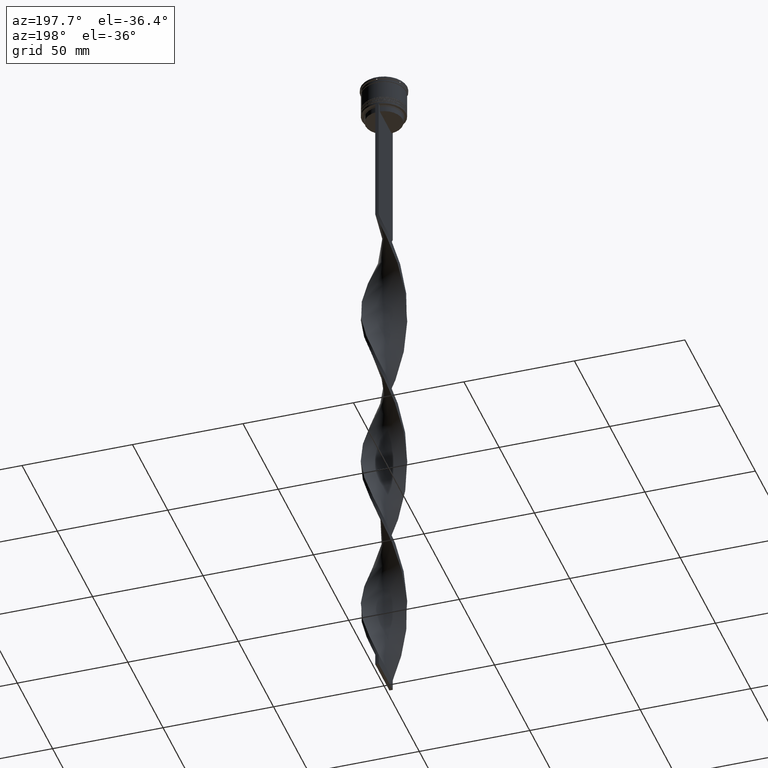
[diagram: clean part render]
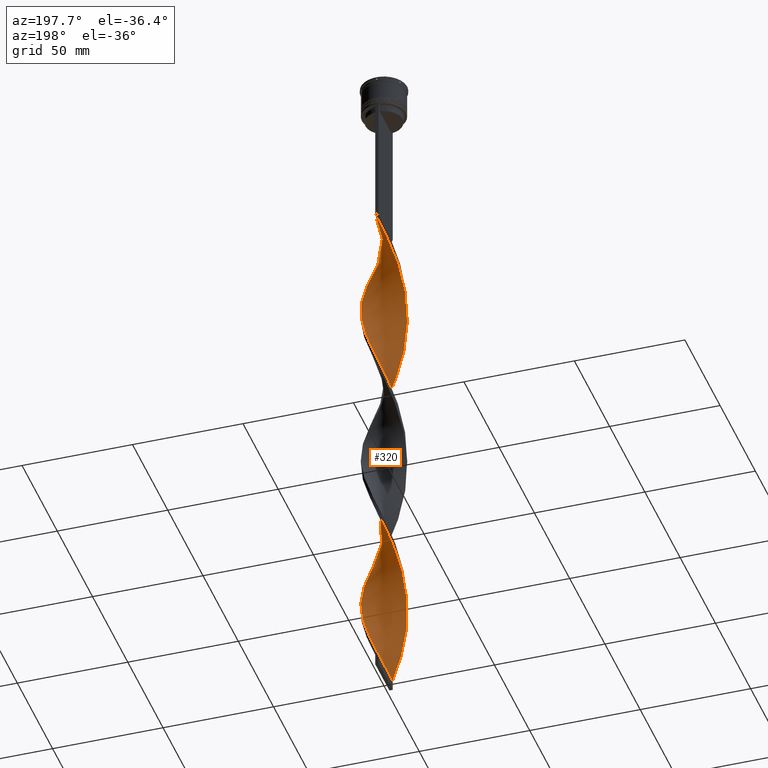
[diagram: same view with one face highlighted and labeled with its STEP entity id]
A machine part, auxiliary view. The second image highlights one B-rep face of the part: STEP entity #320.
In plain terms, the highlighted face is a freeform B-spline surface patch.
Its self-contained STEP definition (entity closure, byte-faithful):
#7 = CARTESIAN_POINT ( 'NONE',  ( 0.03701706824618287983, -10.05902628011846112, -153.6333333333333826 ) ) ;
#12 = CARTESIAN_POINT ( 'NONE',  ( -0.03701706824618418434, 10.05902628011846112, -74.96666666666668277 ) ) ;
#20 = CARTESIAN_POINT ( 'NONE',  ( -9.994209254731549308, -0.8235783949559544181, -273.5999999999999659 ) ) ;
#23 = CARTESIAN_POINT ( 'NONE',  ( -3.803462330970839744, -9.278802417170323835, -301.1333333333333258 ) ) ;
#29 = CARTESIAN_POINT ( 'NONE',  ( 4.599684817117890567, -8.945852645255822466, -165.4333333333333371 ) ) ;
#38 = CARTESIAN_POINT ( 'NONE',  ( -1.537017068246183671, 9.940973719881544213, -153.6333333333333826 ) ) ;
#40 = CARTESIAN_POINT ( 'NONE',  ( -1.537017068246185891, -9.940973719881535331, -307.0333333333333030 ) ) ;
#47 = EDGE_CURVE ( 'NONE', #1635, #4256, #1067, .T. ) ;
#60 = CARTESIAN_POINT ( 'NONE',  ( 9.578141394460878644, 3.073204743451140697, -118.2333333333333343 ) ) ;
#70 = CARTESIAN_POINT ( 'NONE',  ( 9.994209254731549308, 0.8235783949559529749, -194.9333333333333371 ) ) ;
#71 = CARTESIAN_POINT ( 'NONE',  ( 2.376877556528111501, 9.742327908732750785, -301.1333333333333258 ) ) ;
#74 = CARTESIAN_POINT ( 'NONE',  ( -8.945852645255822466, -4.599684817117892344, -126.1000000000000227 ) ) ;
#79 = CARTESIAN_POINT ( 'NONE',  ( 8.159681294278264829, 5.882599862582952532, -126.1000000000000369 ) ) ;
#97 = CARTESIAN_POINT ( 'NONE',  ( 9.929392229344639276, -1.610139721665728274, -106.4333333333333513 ) ) ;
#117 = CARTESIAN_POINT ( 'NONE',  ( -3.143615391390492064, 9.555263588120853413, -240.1666666666666856 ) ) ;
#119 = CARTESIAN_POINT ( 'NONE',  ( 10.00000000000000533, 0.7499999999999994449, -112.3333333333333428 ) ) ;
#130 = CARTESIAN_POINT ( 'NONE',  ( 9.929392229344641052, -1.610139721665728274, -263.7666666666667084 ) ) ;
#139 = CARTESIAN_POINT ( 'NONE',  ( -5.942494737169148777, 8.116165120681838374, -248.0333333333333599 ) ) ;
#140 = CARTESIAN_POINT ( 'NONE',  ( 5.882599862582951644, -8.159681294278264829, -86.76666666666666572 ) ) ;
#141 = CARTESIAN_POINT ( 'NONE',  ( -9.278802417170330941, -3.803462330970838856, -198.8666666666666742 ) ) ;
#149 = CARTESIAN_POINT ( 'NONE',  ( 0.7500000000000001110, -10.00000000000000533, -73.00000000000001421 ) ) ;
#154 = CARTESIAN_POINT ( 'NONE',  ( -9.929392229344641052, 1.610139721665725387, -185.0999999999999659 ) ) ;
#157 = CARTESIAN_POINT ( 'NONE',  ( -9.578141394460869762, 3.073204743451140697, -106.4333333333333513 ) ) ;
#165 = EDGE_CURVE ( 'NONE', #1973, #1635, #2807, .T. ) ;
#171 = CARTESIAN_POINT ( 'NONE',  ( -8.159681294278266606, -5.882599862582948091, -204.7666666666666799 ) ) ;
#183 = CARTESIAN_POINT ( 'NONE',  ( -9.278802417170323835, 3.803462330970839744, -261.7999999999999545 ) ) ;
#195 = CARTESIAN_POINT ( 'NONE',  ( 8.531008882968833973, -5.271089777143523669, -253.9333333333333371 ) ) ;
#200 = CARTESIAN_POINT ( 'NONE',  ( 3.143615391390490732, -9.555263588120853413, -161.5000000000000000 ) ) ;
#204 = CARTESIAN_POINT ( 'NONE',  ( -9.250558116688338828, -3.871650104254190428, -281.4666666666666401 ) ) ;
#212 = ORIENTED_EDGE ( 'NONE', *, *, #47, .F. ) ;
#214 = CARTESIAN_POINT ( 'NONE',  ( 10.05902628011846822, -0.03701706824618537089, -110.3666666666666742 ) ) ;
#215 = CARTESIAN_POINT ( 'NONE',  ( 8.116165120681840150, -5.942494737169153218, -251.9666666666666970 ) ) ;
#221 = CARTESIAN_POINT ( 'NONE',  ( -8.116165120681838374, -5.942494737169147889, -130.0333333333333314 ) ) ;
#233 = CARTESIAN_POINT ( 'NONE',  ( 3.871650104254194869, 9.250558116688344157, -139.8666666666666742 ) ) ;
#239 = CARTESIAN_POINT ( 'NONE',  ( 1.537017068246191664, 9.940973719881533555, -228.3666666666666742 ) ) ;
#241 = CARTESIAN_POINT ( 'NONE',  ( -0.8235783949559550843, 9.994209254731549308, -76.93333333333333712 ) ) ;
#256 = CARTESIAN_POINT ( 'NONE',  ( -2.305110905848663183, -9.759557557171202546, -147.7333333333333201 ) ) ;
#263 = CARTESIAN_POINT ( 'NONE',  ( -5.882599862582949868, 8.159681294278264829, -165.4333333333333371 ) ) ;
#270 = CARTESIAN_POINT ( 'NONE',  ( -1.610139721665726054, 9.929392229344633947, -236.2333333333333769 ) ) ;
#282 = CARTESIAN_POINT ( 'NONE',  ( -2.376877556528113278, -9.742327908732750785, -222.4666666666666686 ) ) ;
#290 = CARTESIAN_POINT ( 'NONE',  ( 9.940973719881533555, -1.537017068246190554, -189.0333333333333314 ) ) ;
#302 = CARTESIAN_POINT ( 'NONE',  ( 0.7500000000000001110, -10.00000000000000533, -73.00000000000001421 ) ) ;
#304 = CARTESIAN_POINT ( 'NONE',  ( -3.803462330970839744, 9.278802417170330941, -159.5333333333333314 ) ) ;
#310 = CARTESIAN_POINT ( 'NONE',  ( -9.999999999999998224, 0.7500000000000007772, -269.6666666666666856 ) ) ;
#320 = ADVANCED_FACE ( 'NONE', ( #4128 ), #1938, .T. ) ;
#336 = CARTESIAN_POINT ( 'NONE',  ( -9.555263588120853413, -3.143615391390491620, -279.4999999999999432 ) ) ;
#354 = CARTESIAN_POINT ( 'NONE',  ( -8.531008882968828644, -5.271089777143518340, -285.3999999999999773 ) ) ;
#369 = CARTESIAN_POINT ( 'NONE',  ( -0.8235783949559549733, 9.994209254731549308, -76.93333333333333712 ) ) ;
#377 = CARTESIAN_POINT ( 'NONE',  ( 8.979463439879786790, 4.533719918490541900, -122.1666666666666998 ) ) ;
#393 = CARTESIAN_POINT ( 'NONE',  ( -9.555263588120853413, -3.143615391390491176, -122.1666666666666856 ) ) ;
#403 = CARTESIAN_POINT ( 'NONE',  ( -2.305110905848661851, 9.759557557171209652, -155.6000000000000227 ) ) ;
#411 = CARTESIAN_POINT ( 'NONE',  ( 6.484615268705942626, 7.649331004530116829, -214.5999999999999943 ) ) ;
#419 = CARTESIAN_POINT ( 'NONE',  ( -5.882599862582949868, -8.159681294278259500, -295.2333333333332916 ) ) ;
#435 = CARTESIAN_POINT ( 'NONE',  ( 9.250558116688344157, -3.871650104254194869, -100.5333333333333314 ) ) ;
#442 = CARTESIAN_POINT ( 'NONE',  ( 10.00000000000000533, 0.7499999999999994449, -269.6666666666666856 ) ) ;
#454 = CARTESIAN_POINT ( 'NONE',  ( 5.942494737169154106, 8.116165120681840150, -133.9666666666666686 ) ) ;
#462 = CARTESIAN_POINT ( 'NONE',  ( 5.882599862582951644, -8.159681294278264829, -244.0999999999999943 ) ) ;
#471 = CARTESIAN_POINT ( 'NONE',  ( 9.929392229344639276, -1.610139721665728274, -263.7666666666667652 ) ) ;
#475 = CARTESIAN_POINT ( 'NONE',  ( -8.531008882968828644, -5.271089777143518340, -128.0666666666666629 ) ) ;
#490 = CARTESIAN_POINT ( 'NONE',  ( 10.00000000000000533, 0.7499999999999994449, -269.6666666666666856 ) ) ;
#495 = CARTESIAN_POINT ( 'NONE',  ( -5.882599862582949868, -8.159681294278259500, -137.9000000000000625 ) ) ;
#511 = CARTESIAN_POINT ( 'NONE',  ( 3.143615391390495173, 9.555263588120860518, -299.1666666666666856 ) ) ;
#521 = CARTESIAN_POINT ( 'NONE',  ( -9.994209254731549308, -0.8235783949559544181, -116.2666666666666657 ) ) ;
#537 = CARTESIAN_POINT ( 'NONE',  ( -7.138980714781983927, -7.086630674828942489, -208.7000000000000171 ) ) ;
#538 = CARTESIAN_POINT ( 'NONE',  ( 2.305110905848663183, -9.759557557171209652, -234.2666666666666515 ) ) ;
#541 = ORIENTED_EDGE ( 'NONE', *, *, #3530, .T. ) ;
#545 = CARTESIAN_POINT ( 'NONE',  ( 0.7500000000000001110, 9.999999999999998224, -73.00000000000001421 ) ) ;
#548 = CARTESIAN_POINT ( 'NONE',  ( -7.086630674828936272, -7.138980714781978598, -291.3000000000000682 ) ) ;
#557 = CARTESIAN_POINT ( 'NONE',  ( -8.569572367079024033, -5.208159890536744996, -202.8000000000000114 ) ) ;
#558 = CARTESIAN_POINT ( 'NONE',  ( 9.940973719881544213, 1.537017068246184337, -271.6333333333332689 ) ) ;
#578 = EDGE_LOOP ( 'NONE', ( #988, #541, #3738, #212 ) ) ;
#583 = CARTESIAN_POINT ( 'NONE',  ( -8.116165120681841927, 5.942494737169157659, -173.3000000000000114 ) ) ;
#589 = CARTESIAN_POINT ( 'NONE',  ( -0.8235783949559550843, 9.994209254731549308, -234.2666666666666515 ) ) ;
#608 = CARTESIAN_POINT ( 'NONE',  ( -6.540737725975570349, -7.601397897755387767, -210.6666666666666572 ) ) ;
#614 = CARTESIAN_POINT ( 'NONE',  ( -3.143615391390491620, 9.555263588120853413, -240.1666666666667140 ) ) ;
#626 = CARTESIAN_POINT ( 'NONE',  ( 1.610139721665724499, -9.929392229344635723, -157.5666666666666913 ) ) ;
#630 = CARTESIAN_POINT ( 'NONE',  ( -4.599684817117894120, -8.945852645255826019, -216.5666666666666629 ) ) ;
#637 = CARTESIAN_POINT ( 'NONE',  ( 3.073204743451137588, 9.578141394460871538, -224.4333333333333655 ) ) ;
#650 = CARTESIAN_POINT ( 'NONE',  ( -0.7499999999999988898, 10.00000000000000533, -309.0000000000000000 ) ) ;
#657 = CARTESIAN_POINT ( 'NONE',  ( -2.376877556528108393, 9.742327908732745456, -238.1999999999999886 ) ) ;
#664 = CARTESIAN_POINT ( 'NONE',  ( -0.7500000000000005551, -3.333333333333330373, -309.0000000000000000 ) ) ;
#685 = CARTESIAN_POINT ( 'NONE',  ( 5.271089777143518340, -8.531008882968828644, -167.4000000000000057 ) ) ;
#688 = CARTESIAN_POINT ( 'NONE',  ( -2.305110905848663183, -9.759557557171202546, -305.0666666666666629 ) ) ;
#695 = CARTESIAN_POINT ( 'NONE',  ( 8.945852645255824243, 4.599684817117886126, -204.7666666666666799 ) ) ;
#698 = CARTESIAN_POINT ( 'NONE',  ( -9.994209254731549308, -0.8235783949559543071, -116.2666666666666657 ) ) ;
#702 = CARTESIAN_POINT ( 'NONE',  ( 0.7500000000000002220, 9.999999999999998224, -73.00000000000001421 ) ) ;
#705 = CARTESIAN_POINT ( 'NONE',  ( 9.742327908732750785, -2.376877556528111057, -104.4666666666666828 ) ) ;
#715 = CARTESIAN_POINT ( 'NONE',  ( 8.116165120681836598, 5.942494737169151442, -208.7000000000000171 ) ) ;
#719 = CARTESIAN_POINT ( 'NONE',  ( -4.599684817117892344, 8.945852645255822466, -86.76666666666666572 ) ) ;
#727 = CARTESIAN_POINT ( 'NONE',  ( -1.537017068246185891, -9.940973719881535331, -307.0333333333333030 ) ) ;
#738 = CARTESIAN_POINT ( 'NONE',  ( 7.649331004530123934, 6.484615268705943514, -285.3999999999999773 ) ) ;
#743 = CARTESIAN_POINT ( 'NONE',  ( -8.569572367079015152, 5.208159890536744108, -100.5333333333333314 ) ) ;
#753 = CARTESIAN_POINT ( 'NONE',  ( 7.086630674828940712, -7.138980714781985704, -90.70000000000001705 ) ) ;
#762 = CARTESIAN_POINT ( 'NONE',  ( 8.159681294278264829, 5.882599862582951644, -283.4333333333333940 ) ) ;
#765 = CARTESIAN_POINT ( 'NONE',  ( -7.649331004530118605, 6.484615268705940849, -96.60000000000000853 ) ) ;
#768 = CARTESIAN_POINT ( 'NONE',  ( -3.073204743451140697, -9.578141394460869762, -303.0999999999999659 ) ) ;
#772 = CARTESIAN_POINT ( 'NONE',  ( 1.537017068246185003, -9.940973719881544213, -74.96666666666668277 ) ) ;
#780 = CARTESIAN_POINT ( 'NONE',  ( 9.742327908732750785, -2.376877556528111057, -261.7999999999999545 ) ) ;
#789 = CARTESIAN_POINT ( 'NONE',  ( -7.086630674828937160, -7.138980714781979486, -291.3000000000000682 ) ) ;
#796 = CARTESIAN_POINT ( 'NONE',  ( 8.979463439879785014, 4.533719918490541900, -279.4999999999999432 ) ) ;
#808 = CARTESIAN_POINT ( 'NONE',  ( 8.531008882968833973, -5.271089777143523669, -96.60000000000000853 ) ) ;
#809 = CARTESIAN_POINT ( 'NONE',  ( -1.610139721665725832, -9.929392229344641052, -224.4333333333333655 ) ) ;
#816 = CARTESIAN_POINT ( 'NONE',  ( -8.569572367079015152, 5.208159890536744108, -100.5333333333333314 ) ) ;
#828 = CARTESIAN_POINT ( 'NONE',  ( -9.250558116688344157, 3.871650104254195757, -179.1999999999999886 ) ) ;
#832 = CARTESIAN_POINT ( 'NONE',  ( -7.138980714781979486, 7.086630674828936272, -94.63333333333335418 ) ) ;
#848 = CARTESIAN_POINT ( 'NONE',  ( 9.759557557171209652, 2.305110905848662739, -273.5999999999999659 ) ) ;
#854 = CARTESIAN_POINT ( 'NONE',  ( 1.610139721665724943, -9.929392229344635723, -157.5666666666666629 ) ) ;
#858 = CARTESIAN_POINT ( 'NONE',  ( -8.945852645255822466, -4.599684817117892344, -283.4333333333333940 ) ) ;
#868 = CARTESIAN_POINT ( 'NONE',  ( 5.208159890536745884, -8.569572367079022257, -84.80000000000001137 ) ) ;
#869 = CARTESIAN_POINT ( 'NONE',  ( -6.540737725975570349, -7.601397897755387767, -210.6666666666666572 ) ) ;
#878 = CARTESIAN_POINT ( 'NONE',  ( 3.871650104254189539, -9.250558116688338828, -163.4666666666666401 ) ) ;
#883 = CARTESIAN_POINT ( 'NONE',  ( -8.569572367079015152, 5.208159890536744108, -257.8666666666666742 ) ) ;
#894 = CARTESIAN_POINT ( 'NONE',  ( -8.979463439879783238, -4.533719918490545453, -200.8333333333333428 ) ) ;
#895 = CARTESIAN_POINT ( 'NONE',  ( -0.8235783949559584149, -9.994209254731554637, -226.3999999999999773 ) ) ;
#901 = CARTESIAN_POINT ( 'NONE',  ( -9.929392229344635723, -1.610139721665725387, -118.2333333333333343 ) ) ;
#914 = CARTESIAN_POINT ( 'NONE',  ( -7.649331004530125711, -6.484615268705942626, -206.7333333333333201 ) ) ;
#920 = CARTESIAN_POINT ( 'NONE',  ( -4.599684817117892344, 8.945852645255820690, -244.0999999999999659 ) ) ;
#930 = CARTESIAN_POINT ( 'NONE',  ( 2.376877556528107061, -9.742327908732745456, -159.5333333333333314 ) ) ;
#935 = CARTESIAN_POINT ( 'NONE',  ( -1.537017068246183671, 9.940973719881544213, -153.6333333333333826 ) ) ;
#942 = CARTESIAN_POINT ( 'NONE',  ( 4.533719918490545453, 8.979463439879777908, -220.5000000000000284 ) ) ;
#965 = CARTESIAN_POINT ( 'NONE',  ( -0.7499999999999988898, 10.00000000000000533, -151.6666666666666856 ) ) ;
#971 = CARTESIAN_POINT ( 'NONE',  ( 8.945852645255822466, 4.599684817117887015, -204.7666666666666799 ) ) ;
#988 = ORIENTED_EDGE ( 'NONE', *, *, #165, .F. ) ;
#993 = CARTESIAN_POINT ( 'NONE',  ( 8.569572367079015152, -5.208159890536744996, -179.1999999999999886 ) ) ;
#1002 = CARTESIAN_POINT ( 'NONE',  ( -3.803462330970839744, -9.278802417170323835, -143.7999999999999829 ) ) ;
#1006 = CARTESIAN_POINT ( 'NONE',  ( -1.610139721665725832, 9.929392229344633947, -78.90000000000001990 ) ) ;
#1014 = CARTESIAN_POINT ( 'NONE',  ( 6.484615268705942626, 7.649331004530116829, -214.5999999999999943 ) ) ;
#1031 = CARTESIAN_POINT ( 'NONE',  ( -9.759557557171204323, 2.305110905848662739, -108.3999999999999915 ) ) ;
#1039 = CARTESIAN_POINT ( 'NONE',  ( -4.533719918490541900, 8.979463439879786790, -161.5000000000000000 ) ) ;
#1049 = CARTESIAN_POINT ( 'NONE',  ( -9.742327908732745456, -2.376877556528107505, -120.2000000000000028 ) ) ;
#1055 = CARTESIAN_POINT ( 'NONE',  ( 3.871650104254194869, 9.250558116688344157, -139.8666666666666742 ) ) ;
#1063 = CARTESIAN_POINT ( 'NONE',  ( 9.250558116688344157, -3.871650104254194869, -257.8666666666666742 ) ) ;
#1067 =( BOUNDED_CURVE ( )  B_SPLINE_CURVE ( 2, ( #1214, #12, #369, #1006, #1089, #4000, #1752, #719, #3657, #2061, #2023, #3338, #765, #3378, #743, #3078, #2717, #1412, #1031, #2370, #3682, #3060, #698, #2041, #1049, #393, #1733, #74, #4040, #2408, #1280, #3977, #4279, #3928, #1663, #1682, #1002, #2343, #256, #3244, #2690, #7, #4232, #626, #930, #3293, #1259, #29, #2272, #3585, #1943, #2020, #2942, #1330, #2622, #3336, #4019, #2447, #4053, #4077, #1110, #1408, #70, #3031, #1702, #3699, #3115, #695, #2117, #715, #2404, #3430, #411, #1748, #1552, #2587, #3772, #2881, #1126, #239, #2566, #2465, #1466, #2220, #2436, #117, #2128, #2473, #1801, #139, #1457, #2794, #2801, #3814, #883, #1844, #183, #1485, #1202, #2484, #3166, #3146, #2843, #4176, #4153, #3191, #204, #858, #2225, #1533, #2864, #548, #1892, #3215, #1447, #3024, #23, #768, #688, #40, #1095 ),
 .UNSPECIFIED., .F., .T. ) 
 B_SPLINE_CURVE_WITH_KNOTS ( ( 3, 2, 2, 2, 2, 2, 2, 2, 2, 2, 2, 2, 2, 2, 2, 2, 2, 2, 2, 2, 2, 2, 2, 2, 2, 2, 2, 2, 2, 2, 2, 2, 2, 2, 2, 2, 2, 2, 2, 2, 2, 2, 2, 2, 2, 2, 2, 2, 2, 2, 2, 2, 2, 2, 2, 2, 2, 2, 2, 2, 3 ),
 ( 0.000000000000000000, 0.01250000000000000243, 0.02500000000000000486, 0.03749999999999999861, 0.05000000000000000971, 0.06250000000000000000, 0.07499999999999999722, 0.08749999999999998057, 0.1000000000000000194, 0.1125000000000000028, 0.1250000000000000000, 0.1375000000000000111, 0.1499999999999999944, 0.1625000000000000056, 0.1749999999999999611, 0.1875000000000000000, 0.2000000000000000389, 0.2124999999999999944, 0.2250000000000000056, 0.2374999999999999611, 0.2500000000000000000, 0.2625000000000000111, 0.2750000000000000222, 0.2874999999999999778, 0.2999999999999999889, 0.3125000000000000000, 0.3250000000000000111, 0.3375000000000000777, 0.3499999999999999223, 0.3624999999999999889, 0.3750000000000000000, 0.3875000000000000111, 0.4000000000000000777, 0.4124999999999999223, 0.4249999999999999889, 0.4375000000000000000, 0.4500000000000000111, 0.4625000000000000777, 0.4749999999999999223, 0.4874999999999999889, 0.5000000000000000000, 0.5124999999999999556, 0.5250000000000000222, 0.5374999999999999778, 0.5500000000000000444, 0.5625000000000000000, 0.5749999999999999556, 0.5875000000000000222, 0.5999999999999999778, 0.6125000000000000444, 0.6250000000000000000, 0.6374999999999999556, 0.6500000000000000222, 0.6624999999999999778, 0.6750000000000001554, 0.6875000000000000000, 0.6999999999999998446, 0.7125000000000000222, 0.7249999999999999778, 0.7375000000000001554, 0.7500000000000000000 ),
 .UNSPECIFIED. ) 
 CURVE ( )  GEOMETRIC_REPRESENTATION_ITEM ( )  RATIONAL_B_SPLINE_CURVE ( ( 1.000000000000000000, 0.9969173337331279638, 1.000000000000000000, 0.9969173337331279638, 1.000000000000000000, 0.9969173337331279638, 1.000000000000000000, 0.9969173337331279638, 1.000000000000000000, 0.9969173337331279638, 1.000000000000000000, 0.9969173337331279638, 1.000000000000000000, 0.9969173337331279638, 1.000000000000000000, 0.9969173337331279638, 1.000000000000000000, 0.9969173337331279638, 1.000000000000000000, 0.9969173337331279638, 1.000000000000000000, 0.9969173337331279638, 1.000000000000000000, 0.9969173337331279638, 1.000000000000000000, 0.9969173337331279638, 1.000000000000000000, 0.9969173337331279638, 1.000000000000000000, 0.9969173337331279638, 1.000000000000000000, 0.9969173337331279638, 1.000000000000000000, 0.9969173337331279638, 1.000000000000000000, 0.9969173337331279638, 1.000000000000000000, 0.9969173337331279638, 1.000000000000000000, 0.9969173337331279638, 1.000000000000000000, 0.9969173337331279638, 1.000000000000000000, 0.9969173337331279638, 1.000000000000000000, 0.9969173337331279638, 1.000000000000000000, 0.9969173337331279638, 1.000000000000000000, 0.9969173337331279638, 1.000000000000000000, 0.9969173337331279638, 1.000000000000000000, 0.9969173337331279638, 1.000000000000000000, 0.9969173337331279638, 1.000000000000000000, 0.9969173337331279638, 1.000000000000000000, 0.9969173337331279638, 1.000000000000000000, 0.9969173337331279638, 1.000000000000000000, 0.9969173337331279638, 1.000000000000000000, 0.9969173337331279638, 1.000000000000000000, 0.9969173337331279638, 1.000000000000000000, 0.9969173337331279638, 1.000000000000000000, 0.9969173337331279638, 1.000000000000000000, 0.9969173337331279638, 1.000000000000000000, 0.9969173337331279638, 1.000000000000000000, 0.9969173337331279638, 1.000000000000000000, 0.9969173337331279638, 1.000000000000000000, 0.9969173337331279638, 1.000000000000000000, 0.9969173337331279638, 1.000000000000000000, 0.9969173337331279638, 1.000000000000000000, 0.9969173337331279638, 1.000000000000000000, 0.9969173337331279638, 1.000000000000000000, 0.9969173337331279638, 1.000000000000000000, 0.9969173337331279638, 1.000000000000000000, 0.9969173337331279638, 1.000000000000000000, 0.9969173337331279638, 1.000000000000000000, 0.9969173337331279638, 1.000000000000000000, 0.9969173337331279638, 1.000000000000000000, 0.9969173337331279638, 1.000000000000000000, 0.9969173337331279638, 1.000000000000000000, 0.9969173337331279638, 1.000000000000000000, 0.9969173337331279638, 1.000000000000000000, 0.9969173337331279638, 1.000000000000000000, 0.9969173337331279638, 1.000000000000000000, 0.9969173337331279638, 1.000000000000000000, 0.9969173337331279638, 1.000000000000000000, 0.9969173337331279638, 1.000000000000000000 ) ) 
 REPRESENTATION_ITEM ( '' )  );
#1072 = CARTESIAN_POINT ( 'NONE',  ( 6.484615268705944402, -7.649331004530123934, -88.73333333333334849 ) ) ;
#1084 = CARTESIAN_POINT ( 'NONE',  ( 7.601397897755390431, -6.540737725975569461, -250.0000000000000000 ) ) ;
#1089 = CARTESIAN_POINT ( 'NONE',  ( -2.376877556528107949, 9.742327908732745456, -80.86666666666667425 ) ) ;
#1095 = CARTESIAN_POINT ( 'NONE',  ( -0.7500000000000014433, -9.999999999999998224, -309.0000000000000000 ) ) ;
#1101 = CARTESIAN_POINT ( 'NONE',  ( 3.803462330970840632, -9.278802417170329164, -80.86666666666667425 ) ) ;
#1110 = CARTESIAN_POINT ( 'NONE',  ( 9.999999999999998224, -0.7500000000000021094, -191.0000000000000000 ) ) ;
#1120 = CARTESIAN_POINT ( 'NONE',  ( 0.8235783949559573047, 9.994209254731554637, -147.7333333333333201 ) ) ;
#1126 = CARTESIAN_POINT ( 'NONE',  ( 2.305110905848664071, 9.759557557171202546, -226.3999999999999773 ) ) ;
#1135 = CARTESIAN_POINT ( 'NONE',  ( -4.599684817117894120, -8.945852645255826019, -216.5666666666666629 ) ) ;
#1155 = CARTESIAN_POINT ( 'NONE',  ( 9.555263588120860518, -3.143615391390494285, -102.5000000000000142 ) ) ;
#1156 = CARTESIAN_POINT ( 'NONE',  ( 9.278802417170330941, 3.803462330970840632, -277.5333333333333030 ) ) ;
#1160 = CARTESIAN_POINT ( 'NONE',  ( -9.278802417170323835, 3.803462330970839300, -104.4666666666666828 ) ) ;
#1173 = CARTESIAN_POINT ( 'NONE',  ( -2.376877556528113278, -9.742327908732750785, -222.4666666666666686 ) ) ;
#1179 = CARTESIAN_POINT ( 'NONE',  ( -5.271089777143520116, 8.531008882968830420, -88.73333333333334849 ) ) ;
#1192 = CARTESIAN_POINT ( 'NONE',  ( 1.610139721665729162, 9.929392229344639276, -303.0999999999999659 ) ) ;
#1202 = CARTESIAN_POINT ( 'NONE',  ( -9.759557557171204323, 2.305110905848662739, -265.7333333333333485 ) ) ;
#1214 = CARTESIAN_POINT ( 'NONE',  ( 0.7500000000000002220, 9.999999999999998224, -73.00000000000001421 ) ) ;
#1217 = CARTESIAN_POINT ( 'NONE',  ( 7.649331004530123934, 6.484615268705943514, -128.0666666666666629 ) ) ;
#1218 = CARTESIAN_POINT ( 'NONE',  ( 6.540737725975569461, 7.601397897755389543, -289.3333333333333144 ) ) ;
#1227 = CARTESIAN_POINT ( 'NONE',  ( -2.376877556528108393, 9.742327908732745456, -80.86666666666667425 ) ) ;
#1242 = CARTESIAN_POINT ( 'NONE',  ( -3.073204743451139809, 9.578141394460878644, -157.5666666666666913 ) ) ;
#1250 = CARTESIAN_POINT ( 'NONE',  ( -7.601397897755385102, -6.540737725975563244, -289.3333333333333144 ) ) ;
#1259 = CARTESIAN_POINT ( 'NONE',  ( 3.871650104254189539, -9.250558116688338828, -163.4666666666666401 ) ) ;
#1264 = CARTESIAN_POINT ( 'NONE',  ( 8.159681294278264829, 5.882599862582951644, -126.1000000000000227 ) ) ;
#1270 = CARTESIAN_POINT ( 'NONE',  ( 9.759557557171202546, -2.305110905848663627, -187.0666666666666629 ) ) ;
#1280 = CARTESIAN_POINT ( 'NONE',  ( -7.601397897755385102, -6.540737725975563244, -132.0000000000000000 ) ) ;
#1286 = CARTESIAN_POINT ( 'NONE',  ( 9.929392229344641052, -1.610139721665728274, -106.4333333333333513 ) ) ;
#1293 = CARTESIAN_POINT ( 'NONE',  ( -10.05902628011846112, -0.03701706824618363617, -271.6333333333332689 ) ) ;
#1314 = CARTESIAN_POINT ( 'NONE',  ( -9.742327908732750785, 2.376877556528111946, -183.1333333333333258 ) ) ;
#1321 = CARTESIAN_POINT ( 'NONE',  ( 9.929392229344635723, 1.610139721665719836, -196.9000000000000057 ) ) ;
#1330 = CARTESIAN_POINT ( 'NONE',  ( 8.159681294278259500, -5.882599862582945427, -177.2333333333333485 ) ) ;
#1340 = CARTESIAN_POINT ( 'NONE',  ( -9.278802417170323835, 3.803462330970839300, -261.7999999999999545 ) ) ;
#1359 = CARTESIAN_POINT ( 'NONE',  ( 8.531008882968833973, -5.271089777143523669, -96.60000000000000853 ) ) ;
#1382 = CARTESIAN_POINT ( 'NONE',  ( 4.533719918490542788, -8.979463439879786790, -82.83333333333335702 ) ) ;
#1392 = CARTESIAN_POINT ( 'NONE',  ( 2.305110905848663183, -9.759557557171209652, -234.2666666666666515 ) ) ;
#1400 = CARTESIAN_POINT ( 'NONE',  ( 9.555263588120860518, -3.143615391390494285, -102.5000000000000000 ) ) ;
#1408 = CARTESIAN_POINT ( 'NONE',  ( 10.05902628011846112, 0.03701706824618678643, -192.9666666666666970 ) ) ;
#1409 = CARTESIAN_POINT ( 'NONE',  ( 4.599684817117896785, 8.945852645255826019, -295.2333333333333485 ) ) ;
#1412 = CARTESIAN_POINT ( 'NONE',  ( -9.578141394460869762, 3.073204743451140697, -106.4333333333333513 ) ) ;
#1417 = CARTESIAN_POINT ( 'NONE',  ( -0.7499999999999988898, 10.00000000000000533, -151.6666666666666856 ) ) ;
#1430 = CARTESIAN_POINT ( 'NONE',  ( 9.759557557171209652, 2.305110905848662739, -273.5999999999999659 ) ) ;
#1442 = CARTESIAN_POINT ( 'NONE',  ( 6.540737725975569461, 7.601397897755389543, -132.0000000000000000 ) ) ;
#1447 = CARTESIAN_POINT ( 'NONE',  ( -5.208159890536744996, -8.569572367079015152, -297.2000000000000455 ) ) ;
#1449 = CARTESIAN_POINT ( 'NONE',  ( 0.03701706824618613417, 10.05902628011846822, -307.0333333333333030 ) ) ;
#1457 = CARTESIAN_POINT ( 'NONE',  ( -6.540737725975564132, 7.601397897755385102, -250.0000000000000000 ) ) ;
#1458 = CARTESIAN_POINT ( 'NONE',  ( 6.484615268705944402, -7.649331004530123934, -88.73333333333334849 ) ) ;
#1459 = CARTESIAN_POINT ( 'NONE',  ( 9.742327908732750785, -2.376877556528111057, -261.7999999999999545 ) ) ;
#1466 = CARTESIAN_POINT ( 'NONE',  ( -0.8235783949559549733, 9.994209254731549308, -234.2666666666666515 ) ) ;
#1478 = CARTESIAN_POINT ( 'NONE',  ( 7.601397897755390431, -6.540737725975569461, -92.66666666666667140 ) ) ;
#1479 = CARTESIAN_POINT ( 'NONE',  ( -9.555263588120856966, 3.143615391390499170, -181.1666666666667140 ) ) ;
#1485 = CARTESIAN_POINT ( 'NONE',  ( -9.578141394460869762, 3.073204743451140697, -263.7666666666667084 ) ) ;
#1502 = CARTESIAN_POINT ( 'NONE',  ( 5.942494737169154106, 8.116165120681840150, -291.3000000000000682 ) ) ;
#1525 = CARTESIAN_POINT ( 'NONE',  ( 2.376877556528111501, 9.742327908732750785, -301.1333333333333258 ) ) ;
#1532 = CARTESIAN_POINT ( 'NONE',  ( -8.159681294278259500, 5.882599862582949868, -98.56666666666669130 ) ) ;
#1533 = CARTESIAN_POINT ( 'NONE',  ( -8.116165120681838374, -5.942494737169147889, -287.3666666666667311 ) ) ;
#1546 = CARTESIAN_POINT ( 'NONE',  ( 9.742327908732750785, -2.376877556528111057, -104.4666666666666828 ) ) ;
#1547 = CARTESIAN_POINT ( 'NONE',  ( 6.484615268705944402, -7.649331004530123934, -246.0666666666666629 ) ) ;
#1552 = CARTESIAN_POINT ( 'NONE',  ( 5.208159890536744996, 8.569572367079015152, -218.5333333333333314 ) ) ;
#1558 = CARTESIAN_POINT ( 'NONE',  ( -0.7499999999999988898, 10.00000000000000533, -309.0000000000000000 ) ) ;
#1571 = CARTESIAN_POINT ( 'NONE',  ( -8.159681294278266606, -5.882599862582947203, -204.7666666666666799 ) ) ;
#1581 = CARTESIAN_POINT ( 'NONE',  ( -6.540737725975564132, 7.601397897755385102, -92.66666666666667140 ) ) ;
#1595 = CARTESIAN_POINT ( 'NONE',  ( -9.994209254731554637, 0.8235783949559579709, -187.0666666666666629 ) ) ;
#1602 = CARTESIAN_POINT ( 'NONE',  ( -7.649331004530118605, 6.484615268705940849, -253.9333333333333371 ) ) ;
#1616 = CARTESIAN_POINT ( 'NONE',  ( -1.610139721665725610, -9.929392229344642828, -224.4333333333333371 ) ) ;
#1623 = CARTESIAN_POINT ( 'NONE',  ( 8.531008882968828644, 5.271089777143517452, -206.7333333333333201 ) ) ;
#1629 = CARTESIAN_POINT ( 'NONE',  ( -0.7499999999999988898, 10.00000000000000533, -309.0000000000000000 ) ) ;
#1635 = VERTEX_POINT ( 'NONE', #702 ) ;
#1639 = CARTESIAN_POINT ( 'NONE',  ( 0.8235783949559573047, 9.994209254731554637, -147.7333333333333201 ) ) ;
#1647 = CARTESIAN_POINT ( 'NONE',  ( 8.116165120681836598, 5.942494737169151442, -208.7000000000000171 ) ) ;
#1663 = CARTESIAN_POINT ( 'NONE',  ( -5.208159890536744996, -8.569572367079015152, -139.8666666666666742 ) ) ;
#1672 = CARTESIAN_POINT ( 'NONE',  ( 9.555263588120851637, 3.143615391390493397, -200.8333333333333428 ) ) ;
#1682 = CARTESIAN_POINT ( 'NONE',  ( -4.533719918490541012, -8.979463439879777908, -141.8333333333333428 ) ) ;
#1694 = CARTESIAN_POINT ( 'NONE',  ( -5.271089777143520116, 8.531008882968830420, -246.0666666666666629 ) ) ;
#1702 = CARTESIAN_POINT ( 'NONE',  ( 9.742327908732745456, 2.376877556528106172, -198.8666666666666742 ) ) ;
#1714 = CARTESIAN_POINT ( 'NONE',  ( 7.649331004530123934, 6.484615268705943514, -128.0666666666666629 ) ) ;
#1733 = CARTESIAN_POINT ( 'NONE',  ( -9.250558116688338828, -3.871650104254190428, -124.1333333333333400 ) ) ;
#1739 = CARTESIAN_POINT ( 'NONE',  ( -6.484615268705943514, 7.649331004530123934, -167.4000000000000057 ) ) ;
#1748 = CARTESIAN_POINT ( 'NONE',  ( 5.882599862582947203, 8.159681294278259500, -216.5666666666666629 ) ) ;
#1749 = CARTESIAN_POINT ( 'NONE',  ( 9.940973719881544213, 1.537017068246184337, -271.6333333333332689 ) ) ;
#1751 =( BOUNDED_CURVE ( )  B_SPLINE_CURVE ( 2, ( #1774, #3845, #3102, #2812, #2129, #2536, #868, #140, #1458, #4142, #1478, #2795, #808, #2152, #4119, #1155, #1546, #1286, #2875, #214, #4186, #4258, #3594, #1971, #2900, #2558, #2214, #1264, #1217, #2976, #4213, #2656, #4237, #3870, #233, #3254, #3937, #3203, #1639, #2925, #965, #935, #2235, #1242, #304, #3297, #4286, #263, #3227, #2630, #3564, #583, #2581, #2605, #3909, #3546, #1314, #1924, #1595, #1902, #3524, #3888, #2280, #2307, #1882, #894, #557, #1571, #914, #537, #608, #3613, #1949, #630, #2255, #3273, #282, #1616, #2947, #3960, #2118, #3093, #1392, #3396, #2099, #2786, #1993, #462, #1767, #4094, #1084, #3773, #1811, #1786, #1063, #2138, #780, #130, #2448, #3431, #442, #1749, #1430, #2772, #2406, #796, #3739, #762, #738, #2325, #3413, #2747, #4037, #1409, #2079, #3374, #71, #3116, #3717, #1449, #650 ),
 .UNSPECIFIED., .F., .T. ) 
 B_SPLINE_CURVE_WITH_KNOTS ( ( 3, 2, 2, 2, 2, 2, 2, 2, 2, 2, 2, 2, 2, 2, 2, 2, 2, 2, 2, 2, 2, 2, 2, 2, 2, 2, 2, 2, 2, 2, 2, 2, 2, 2, 2, 2, 2, 2, 2, 2, 2, 2, 2, 2, 2, 2, 2, 2, 2, 2, 2, 2, 2, 2, 2, 2, 2, 2, 2, 2, 3 ),
 ( 0.000000000000000000, 0.01250000000000000243, 0.02500000000000000486, 0.03749999999999999861, 0.05000000000000000971, 0.06250000000000000000, 0.07499999999999999722, 0.08749999999999998057, 0.1000000000000000194, 0.1125000000000000028, 0.1250000000000000000, 0.1375000000000000111, 0.1499999999999999944, 0.1625000000000000056, 0.1749999999999999611, 0.1875000000000000000, 0.2000000000000000389, 0.2124999999999999944, 0.2250000000000000056, 0.2374999999999999611, 0.2500000000000000000, 0.2625000000000000111, 0.2750000000000000222, 0.2874999999999999778, 0.2999999999999999889, 0.3125000000000000000, 0.3250000000000000111, 0.3375000000000000777, 0.3499999999999999223, 0.3624999999999999889, 0.3750000000000000000, 0.3875000000000000111, 0.4000000000000000777, 0.4124999999999999223, 0.4249999999999999889, 0.4375000000000000000, 0.4500000000000000111, 0.4625000000000000777, 0.4749999999999999223, 0.4874999999999999889, 0.5000000000000000000, 0.5124999999999999556, 0.5250000000000000222, 0.5374999999999999778, 0.5500000000000000444, 0.5625000000000000000, 0.5749999999999999556, 0.5875000000000000222, 0.5999999999999999778, 0.6125000000000000444, 0.6250000000000000000, 0.6374999999999999556, 0.6500000000000000222, 0.6624999999999999778, 0.6750000000000001554, 0.6875000000000000000, 0.6999999999999998446, 0.7125000000000000222, 0.7249999999999999778, 0.7375000000000001554, 0.7500000000000000000 ),
 .UNSPECIFIED. ) 
 CURVE ( )  GEOMETRIC_REPRESENTATION_ITEM ( )  RATIONAL_B_SPLINE_CURVE ( ( 1.000000000000000000, 0.9969173337331279638, 1.000000000000000000, 0.9969173337331279638, 1.000000000000000000, 0.9969173337331279638, 1.000000000000000000, 0.9969173337331279638, 1.000000000000000000, 0.9969173337331279638, 1.000000000000000000, 0.9969173337331279638, 1.000000000000000000, 0.9969173337331279638, 1.000000000000000000, 0.9969173337331279638, 1.000000000000000000, 0.9969173337331279638, 1.000000000000000000, 0.9969173337331279638, 1.000000000000000000, 0.9969173337331279638, 1.000000000000000000, 0.9969173337331279638, 1.000000000000000000, 0.9969173337331279638, 1.000000000000000000, 0.9969173337331279638, 1.000000000000000000, 0.9969173337331279638, 1.000000000000000000, 0.9969173337331279638, 1.000000000000000000, 0.9969173337331279638, 1.000000000000000000, 0.9969173337331279638, 1.000000000000000000, 0.9969173337331279638, 1.000000000000000000, 0.9969173337331279638, 1.000000000000000000, 0.9969173337331279638, 1.000000000000000000, 0.9969173337331279638, 1.000000000000000000, 0.9969173337331279638, 1.000000000000000000, 0.9969173337331279638, 1.000000000000000000, 0.9969173337331279638, 1.000000000000000000, 0.9969173337331279638, 1.000000000000000000, 0.9969173337331279638, 1.000000000000000000, 0.9969173337331279638, 1.000000000000000000, 0.9969173337331279638, 1.000000000000000000, 0.9969173337331279638, 1.000000000000000000, 0.9969173337331279638, 1.000000000000000000, 0.9969173337331279638, 1.000000000000000000, 0.9969173337331279638, 1.000000000000000000, 0.9969173337331279638, 1.000000000000000000, 0.9969173337331279638, 1.000000000000000000, 0.9969173337331279638, 1.000000000000000000, 0.9969173337331279638, 1.000000000000000000, 0.9969173337331279638, 1.000000000000000000, 0.9969173337331279638, 1.000000000000000000, 0.9969173337331279638, 1.000000000000000000, 0.9969173337331279638, 1.000000000000000000, 0.9969173337331279638, 1.000000000000000000, 0.9969173337331279638, 1.000000000000000000, 0.9969173337331279638, 1.000000000000000000, 0.9969173337331279638, 1.000000000000000000, 0.9969173337331279638, 1.000000000000000000, 0.9969173337331279638, 1.000000000000000000, 0.9969173337331279638, 1.000000000000000000, 0.9969173337331279638, 1.000000000000000000, 0.9969173337331279638, 1.000000000000000000, 0.9969173337331279638, 1.000000000000000000, 0.9969173337331279638, 1.000000000000000000, 0.9969173337331279638, 1.000000000000000000, 0.9969173337331279638, 1.000000000000000000, 0.9969173337331279638, 1.000000000000000000, 0.9969173337331279638, 1.000000000000000000, 0.9969173337331279638, 1.000000000000000000, 0.9969173337331279638, 1.000000000000000000, 0.9969173337331279638, 1.000000000000000000, 0.9969173337331279638, 1.000000000000000000 ) ) 
 REPRESENTATION_ITEM ( '' )  );
#1752 = CARTESIAN_POINT ( 'NONE',  ( -3.871650104254190428, 9.250558116688338828, -84.80000000000001137 ) ) ;
#1757 = CARTESIAN_POINT ( 'NONE',  ( -8.116165120681840150, 5.942494737169157659, -173.3000000000000114 ) ) ;
#1767 = CARTESIAN_POINT ( 'NONE',  ( 6.484615268705944402, -7.649331004530123934, -246.0666666666666629 ) ) ;
#1774 = CARTESIAN_POINT ( 'NONE',  ( 0.7500000000000001110, -10.00000000000000533, -73.00000000000001421 ) ) ;
#1775 = CARTESIAN_POINT ( 'NONE',  ( 9.994209254731556413, -0.8235783949559567496, -108.3999999999999915 ) ) ;
#1786 = CARTESIAN_POINT ( 'NONE',  ( 8.945852645255826019, -4.599684817117896785, -255.9000000000000625 ) ) ;
#1801 = CARTESIAN_POINT ( 'NONE',  ( -5.271089777143520116, 8.531008882968830420, -246.0666666666666629 ) ) ;
#1803 = CARTESIAN_POINT ( 'NONE',  ( 0.03701706824618614111, 10.05902628011846822, -149.7000000000000455 ) ) ;
#1811 = CARTESIAN_POINT ( 'NONE',  ( 8.531008882968833973, -5.271089777143523669, -253.9333333333333371 ) ) ;
#1821 = CARTESIAN_POINT ( 'NONE',  ( -3.143615391390500058, -9.555263588120856966, -220.5000000000000284 ) ) ;
#1839 = CARTESIAN_POINT ( 'NONE',  ( -5.942494737169157659, -8.116165120681838374, -212.6333333333333826 ) ) ;
#1843 = CARTESIAN_POINT ( 'NONE',  ( -4.533719918490541012, -8.979463439879779685, -141.8333333333333144 ) ) ;
#1844 = CARTESIAN_POINT ( 'NONE',  ( -8.979463439879777908, 4.533719918490541012, -259.8333333333334281 ) ) ;
#1862 = CARTESIAN_POINT ( 'NONE',  ( 7.086630674828940712, -7.138980714781985704, -248.0333333333333314 ) ) ;
#1882 = CARTESIAN_POINT ( 'NONE',  ( -9.278802417170330941, -3.803462330970838856, -198.8666666666666742 ) ) ;
#1883 = CARTESIAN_POINT ( 'NONE',  ( 3.803462330970840632, -9.278802417170329164, -238.1999999999999886 ) ) ;
#1890 = CARTESIAN_POINT ( 'NONE',  ( -0.03701706824618429537, 10.05902628011846112, -74.96666666666668277 ) ) ;
#1892 = CARTESIAN_POINT ( 'NONE',  ( -6.484615268705941737, -7.649331004530116829, -293.2666666666666515 ) ) ;
#1902 = CARTESIAN_POINT ( 'NONE',  ( -10.05902628011847000, 0.03701706824619112324, -189.0333333333333314 ) ) ;
#1908 = CARTESIAN_POINT ( 'NONE',  ( -9.555263588120853413, -3.143615391390491620, -122.1666666666666998 ) ) ;
#1924 = CARTESIAN_POINT ( 'NONE',  ( -9.929392229344642828, 1.610139721665725165, -185.0999999999999943 ) ) ;
#1933 = CARTESIAN_POINT ( 'NONE',  ( -6.540737725975564132, 7.601397897755385102, -250.0000000000000000 ) ) ;
#1938 =( BOUNDED_SURFACE ( )  B_SPLINE_SURFACE ( 1, 2, ( 
 ( #545, #1890, #241, #3789, #1227, #3211, #2860, #2156, #1179, #4220, #1581, #832, #2568, #1532, #816, #4172, #1160, #157, #2481, #3853, #4195, #3877, #521, #901, #2173, #1908, #2242, #3466, #475, #221, #2840, #3487, #3532, #495, #3552, #1843, #3505, #3188, #3163, #2223, #4150, #2523, #3831, #854, #2194, #200, #878, #3986, #685, #2352, #3915, #3966, #3304, #3281, #993, #1956, #3600, #4292, #1270, #290, #3668, #3570, #2030, #1321, #2639, #1672, #3943, #971, #1623, #1647, #2985, #2610, #1014, #2313, #3620, #942, #2590, #637, #2953, #4244, #4264, #2289, #589, #270, #657, #614, #3642, #920, #1694, #2662, #1933, #3260, #1602, #2932, #2002, #1978, #1340, #3345, #2332, #3004, #310, #1293, #20, #3894, #3327, #336, #2681, #2262, #354, #3022, #1250, #789, #3103, #419, #3765, #2048, #2459, #3748, #3045, #727, #3364 ),
 ( #2130, #772, #2067, #2722, #1101, #1382, #2107, #3690, #1072, #753, #3386, #4066, #1359, #3421, #435, #1400, #705, #97, #1775, #3067, #119, #2378, #4045, #60, #2415, #377, #3440, #79, #1714, #3729, #1442, #454, #2782, #4027, #1055, #2396, #4089, #3084, #1120, #1803, #1417, #38, #403, #4011, #2703, #1039, #2090, #3708, #1739, #2739, #3405, #1757, #2756, #2438, #828, #1479, #4166, #154, #2537, #2475, #4143, #3825, #3808, #2855, #141, #3846, #3525, #171, #3782, #3182, #869, #1839, #2215, #1135, #2835, #1821, #1173, #809, #895, #3158, #2153, #2517, #538, #3547, #1883, #3462, #2813, #3141, #1547, #1862, #3204, #215, #195, #2876, #2170, #2796, #1459, #471, #3483, #3871, #490, #558, #848, #4120, #1156, #2187, #4187, #4105, #2559, #3498, #1218, #1502, #2236, #3127, #2500, #511, #1525, #1192, #3938, #3298, #2977 ) ),
 .UNSPECIFIED., .F., .F., .F. ) 
 B_SPLINE_SURFACE_WITH_KNOTS ( ( 2, 2 ),
 ( 3, 2, 2, 2, 2, 2, 2, 2, 2, 2, 2, 2, 2, 2, 2, 2, 2, 2, 2, 2, 2, 2, 2, 2, 2, 2, 2, 2, 2, 2, 2, 2, 2, 2, 2, 2, 2, 2, 2, 2, 2, 2, 2, 2, 2, 2, 2, 2, 2, 2, 2, 2, 2, 2, 2, 2, 2, 2, 2, 2, 3 ),
 ( 0.000000000000000000, 1.000000000000000000 ),
 ( 0.000000000000000000, 0.01250000000000000069, 0.02500000000000000139, 0.03749999999999999861, 0.05000000000000000278, 0.06250000000000000000, 0.07499999999999999722, 0.08749999999999999445, 0.1000000000000000056, 0.1125000000000000028, 0.1250000000000000000, 0.1375000000000000111, 0.1499999999999999944, 0.1625000000000000056, 0.1749999999999999889, 0.1875000000000000000, 0.2000000000000000111, 0.2124999999999999944, 0.2250000000000000056, 0.2374999999999999889, 0.2500000000000000000, 0.2625000000000000111, 0.2750000000000000222, 0.2874999999999999778, 0.2999999999999999889, 0.3125000000000000000, 0.3250000000000000111, 0.3375000000000000222, 0.3499999999999999778, 0.3624999999999999889, 0.3750000000000000000, 0.3875000000000000111, 0.4000000000000000222, 0.4124999999999999778, 0.4249999999999999889, 0.4375000000000000000, 0.4500000000000000111, 0.4625000000000000222, 0.4749999999999999778, 0.4874999999999999889, 0.5000000000000000000, 0.5124999999999999556, 0.5250000000000000222, 0.5374999999999999778, 0.5500000000000000444, 0.5625000000000000000, 0.5749999999999999556, 0.5875000000000000222, 0.5999999999999999778, 0.6125000000000000444, 0.6250000000000000000, 0.6374999999999999556, 0.6500000000000000222, 0.6624999999999999778, 0.6750000000000000444, 0.6875000000000000000, 0.6999999999999999556, 0.7125000000000000222, 0.7249999999999999778, 0.7375000000000000444, 0.7500000000000000000 ),
 .UNSPECIFIED. ) 
 GEOMETRIC_REPRESENTATION_ITEM ( )  RATIONAL_B_SPLINE_SURFACE ( (
 ( 1.000000000000000000, 0.9969173337331279638, 1.000000000000000000, 0.9969173337331279638, 1.000000000000000000, 0.9969173337331279638, 1.000000000000000000, 0.9969173337331279638, 1.000000000000000000, 0.9969173337331279638, 1.000000000000000000, 0.9969173337331279638, 1.000000000000000000, 0.9969173337331279638, 1.000000000000000000, 0.9969173337331279638, 1.000000000000000000, 0.9969173337331279638, 1.000000000000000000, 0.9969173337331279638, 1.000000000000000000, 0.9969173337331279638, 1.000000000000000000, 0.9969173337331279638, 1.000000000000000000, 0.9969173337331279638, 1.000000000000000000, 0.9969173337331279638, 1.000000000000000000, 0.9969173337331279638, 1.000000000000000000, 0.9969173337331279638, 1.000000000000000000, 0.9969173337331279638, 1.000000000000000000, 0.9969173337331279638, 1.000000000000000000, 0.9969173337331279638, 1.000000000000000000, 0.9969173337331279638, 1.000000000000000000, 0.9969173337331279638, 1.000000000000000000, 0.9969173337331279638, 1.000000000000000000, 0.9969173337331279638, 1.000000000000000000, 0.9969173337331279638, 1.000000000000000000, 0.9969173337331279638, 1.000000000000000000, 0.9969173337331279638, 1.000000000000000000, 0.9969173337331279638, 1.000000000000000000, 0.9969173337331279638, 1.000000000000000000, 0.9969173337331279638, 1.000000000000000000, 0.9969173337331279638, 1.000000000000000000, 0.9969173337331279638, 1.000000000000000000, 0.9969173337331279638, 1.000000000000000000, 0.9969173337331279638, 1.000000000000000000, 0.9969173337331279638, 1.000000000000000000, 0.9969173337331279638, 1.000000000000000000, 0.9969173337331279638, 1.000000000000000000, 0.9969173337331279638, 1.000000000000000000, 0.9969173337331279638, 1.000000000000000000, 0.9969173337331279638, 1.000000000000000000, 0.9969173337331279638, 1.000000000000000000, 0.9969173337331279638, 1.000000000000000000, 0.9969173337331279638, 1.000000000000000000, 0.9969173337331279638, 1.000000000000000000, 0.9969173337331279638, 1.000000000000000000, 0.9969173337331279638, 1.000000000000000000, 0.9969173337331279638, 1.000000000000000000, 0.9969173337331279638, 1.000000000000000000, 0.9969173337331279638, 1.000000000000000000, 0.9969173337331279638, 1.000000000000000000, 0.9969173337331279638, 1.000000000000000000, 0.9969173337331279638, 1.000000000000000000, 0.9969173337331279638, 1.000000000000000000, 0.9969173337331279638, 1.000000000000000000, 0.9969173337331279638, 1.000000000000000000, 0.9969173337331279638, 1.000000000000000000, 0.9969173337331279638, 1.000000000000000000, 0.9969173337331279638, 1.000000000000000000, 0.9969173337331279638, 1.000000000000000000, 0.9969173337331279638, 1.000000000000000000, 0.9969173337331279638, 1.000000000000000000),
 ( 1.000000000000000000, 0.9969173337331279638, 1.000000000000000000, 0.9969173337331279638, 1.000000000000000000, 0.9969173337331279638, 1.000000000000000000, 0.9969173337331279638, 1.000000000000000000, 0.9969173337331279638, 1.000000000000000000, 0.9969173337331279638, 1.000000000000000000, 0.9969173337331279638, 1.000000000000000000, 0.9969173337331279638, 1.000000000000000000, 0.9969173337331279638, 1.000000000000000000, 0.9969173337331279638, 1.000000000000000000, 0.9969173337331279638, 1.000000000000000000, 0.9969173337331279638, 1.000000000000000000, 0.9969173337331279638, 1.000000000000000000, 0.9969173337331279638, 1.000000000000000000, 0.9969173337331279638, 1.000000000000000000, 0.9969173337331279638, 1.000000000000000000, 0.9969173337331279638, 1.000000000000000000, 0.9969173337331279638, 1.000000000000000000, 0.9969173337331279638, 1.000000000000000000, 0.9969173337331279638, 1.000000000000000000, 0.9969173337331279638, 1.000000000000000000, 0.9969173337331279638, 1.000000000000000000, 0.9969173337331279638, 1.000000000000000000, 0.9969173337331279638, 1.000000000000000000, 0.9969173337331279638, 1.000000000000000000, 0.9969173337331279638, 1.000000000000000000, 0.9969173337331279638, 1.000000000000000000, 0.9969173337331279638, 1.000000000000000000, 0.9969173337331279638, 1.000000000000000000, 0.9969173337331279638, 1.000000000000000000, 0.9969173337331279638, 1.000000000000000000, 0.9969173337331279638, 1.000000000000000000, 0.9969173337331279638, 1.000000000000000000, 0.9969173337331279638, 1.000000000000000000, 0.9969173337331279638, 1.000000000000000000, 0.9969173337331279638, 1.000000000000000000, 0.9969173337331279638, 1.000000000000000000, 0.9969173337331279638, 1.000000000000000000, 0.9969173337331279638, 1.000000000000000000, 0.9969173337331279638, 1.000000000000000000, 0.9969173337331279638, 1.000000000000000000, 0.9969173337331279638, 1.000000000000000000, 0.9969173337331279638, 1.000000000000000000, 0.9969173337331279638, 1.000000000000000000, 0.9969173337331279638, 1.000000000000000000, 0.9969173337331279638, 1.000000000000000000, 0.9969173337331279638, 1.000000000000000000, 0.9969173337331279638, 1.000000000000000000, 0.9969173337331279638, 1.000000000000000000, 0.9969173337331279638, 1.000000000000000000, 0.9969173337331279638, 1.000000000000000000, 0.9969173337331279638, 1.000000000000000000, 0.9969173337331279638, 1.000000000000000000, 0.9969173337331279638, 1.000000000000000000, 0.9969173337331279638, 1.000000000000000000, 0.9969173337331279638, 1.000000000000000000, 0.9969173337331279638, 1.000000000000000000, 0.9969173337331279638, 1.000000000000000000, 0.9969173337331279638, 1.000000000000000000, 0.9969173337331279638, 1.000000000000000000) ) ) 
 REPRESENTATION_ITEM ( '' )  SURFACE ( )  );
#1943 = CARTESIAN_POINT ( 'NONE',  ( 6.540737725975562356, -7.601397897755385991, -171.3333333333333428 ) ) ;
#1949 = CARTESIAN_POINT ( 'NONE',  ( -5.271089777143526334, -8.531008882968833973, -214.5999999999999943 ) ) ;
#1956 = CARTESIAN_POINT ( 'NONE',  ( 8.979463439879777908, -4.533719918490545453, -181.1666666666667140 ) ) ;
#1971 = CARTESIAN_POINT ( 'NONE',  ( 9.578141394460878644, 3.073204743451140253, -118.2333333333333485 ) ) ;
#1973 = VERTEX_POINT ( 'NONE', #302 ) ;
#1978 = CARTESIAN_POINT ( 'NONE',  ( -8.979463439879779685, 4.533719918490541012, -259.8333333333334281 ) ) ;
#1993 = CARTESIAN_POINT ( 'NONE',  ( 5.208159890536745884, -8.569572367079022257, -242.1333333333333258 ) ) ;
#2002 = CARTESIAN_POINT ( 'NONE',  ( -8.569572367079015152, 5.208159890536744108, -257.8666666666666742 ) ) ;
#2012 = CARTESIAN_POINT ( 'NONE',  ( -0.7499999999999997780, 3.333333333333337478, -309.0000000000000000 ) ) ;
#2020 = CARTESIAN_POINT ( 'NONE',  ( 7.138980714781975934, -7.086630674828939824, -173.3000000000000114 ) ) ;
#2023 = CARTESIAN_POINT ( 'NONE',  ( -6.540737725975564132, 7.601397897755385102, -92.66666666666667140 ) ) ;
#2030 = CARTESIAN_POINT ( 'NONE',  ( 9.994209254731549308, 0.8235783949559530859, -194.9333333333333371 ) ) ;
#2041 = CARTESIAN_POINT ( 'NONE',  ( -9.929392229344635723, -1.610139721665724943, -118.2333333333333485 ) ) ;
#2048 = CARTESIAN_POINT ( 'NONE',  ( -4.533719918490541012, -8.979463439879779685, -299.1666666666666856 ) ) ;
#2061 = CARTESIAN_POINT ( 'NONE',  ( -5.942494737169148777, 8.116165120681838374, -90.70000000000001705 ) ) ;
#2067 = CARTESIAN_POINT ( 'NONE',  ( 2.305110905848663183, -9.759557557171209652, -76.93333333333333712 ) ) ;
#2079 = CARTESIAN_POINT ( 'NONE',  ( 3.871650104254194869, 9.250558116688344157, -297.2000000000000455 ) ) ;
#2090 = CARTESIAN_POINT ( 'NONE',  ( -5.208159890536744996, 8.569572367079022257, -163.4666666666666401 ) ) ;
#2099 = CARTESIAN_POINT ( 'NONE',  ( 3.803462330970840632, -9.278802417170329164, -238.1999999999999886 ) ) ;
#2107 = CARTESIAN_POINT ( 'NONE',  ( 5.208159890536745884, -8.569572367079022257, -84.80000000000001137 ) ) ;
#2117 = CARTESIAN_POINT ( 'NONE',  ( 8.531008882968828644, 5.271089777143517452, -206.7333333333333201 ) ) ;
#2118 = CARTESIAN_POINT ( 'NONE',  ( 0.7500000000000001110, -10.00000000000000533, -230.3333333333333428 ) ) ;
#2128 = CARTESIAN_POINT ( 'NONE',  ( -3.871650104254190428, 9.250558116688338828, -242.1333333333333258 ) ) ;
#2129 = CARTESIAN_POINT ( 'NONE',  ( 3.803462330970840632, -9.278802417170329164, -80.86666666666667425 ) ) ;
#2130 = CARTESIAN_POINT ( 'NONE',  ( 0.7500000000000001110, -10.00000000000000533, -73.00000000000001421 ) ) ;
#2138 = CARTESIAN_POINT ( 'NONE',  ( 9.555263588120860518, -3.143615391390494285, -259.8333333333334281 ) ) ;
#2152 = CARTESIAN_POINT ( 'NONE',  ( 8.945852645255826019, -4.599684817117896785, -98.56666666666669130 ) ) ;
#2153 = CARTESIAN_POINT ( 'NONE',  ( 0.7500000000000001110, -10.00000000000000533, -230.3333333333333428 ) ) ;
#2156 = CARTESIAN_POINT ( 'NONE',  ( -4.599684817117892344, 8.945852645255820690, -86.76666666666666572 ) ) ;
#2170 = CARTESIAN_POINT ( 'NONE',  ( 9.250558116688344157, -3.871650104254194869, -257.8666666666666742 ) ) ;
#2173 = CARTESIAN_POINT ( 'NONE',  ( -9.742327908732745456, -2.376877556528107949, -120.2000000000000028 ) ) ;
#2187 = CARTESIAN_POINT ( 'NONE',  ( 8.979463439879786790, 4.533719918490541900, -279.4999999999999432 ) ) ;
#2194 = CARTESIAN_POINT ( 'NONE',  ( 2.376877556528107061, -9.742327908732745456, -159.5333333333333314 ) ) ;
#2205 = DIRECTION ( 'NONE',  ( 0.000000000000000000, 1.000000000000000000, 0.000000000000000000 ) ) ;
#2214 = CARTESIAN_POINT ( 'NONE',  ( 8.569572367079022257, 5.208159890536745884, -124.1333333333333400 ) ) ;
#2215 = CARTESIAN_POINT ( 'NONE',  ( -5.271089777143526334, -8.531008882968833973, -214.5999999999999943 ) ) ;
#2220 = CARTESIAN_POINT ( 'NONE',  ( -1.610139721665725832, 9.929392229344633947, -236.2333333333333485 ) ) ;
#2223 = CARTESIAN_POINT ( 'NONE',  ( -1.537017068246185891, -9.940973719881535331, -149.7000000000000455 ) ) ;
#2225 = CARTESIAN_POINT ( 'NONE',  ( -8.531008882968830420, -5.271089777143518340, -285.3999999999999773 ) ) ;
#2235 = CARTESIAN_POINT ( 'NONE',  ( -2.305110905848661851, 9.759557557171209652, -155.6000000000000227 ) ) ;
#2236 = CARTESIAN_POINT ( 'NONE',  ( 5.271089777143525446, 8.531008882968833973, -293.2666666666666515 ) ) ;
#2242 = CARTESIAN_POINT ( 'NONE',  ( -9.250558116688338828, -3.871650104254190428, -124.1333333333333400 ) ) ;
#2255 = CARTESIAN_POINT ( 'NONE',  ( -3.871650104254195757, -9.250558116688344157, -218.5333333333333314 ) ) ;
#2262 = CARTESIAN_POINT ( 'NONE',  ( -8.945852645255820690, -4.599684817117892344, -283.4333333333333940 ) ) ;
#2272 = CARTESIAN_POINT ( 'NONE',  ( 5.271089777143518340, -8.531008882968830420, -167.4000000000000057 ) ) ;
#2280 = CARTESIAN_POINT ( 'NONE',  ( -9.759557557171209652, -2.305110905848660963, -194.9333333333333371 ) ) ;
#2289 = CARTESIAN_POINT ( 'NONE',  ( -0.03701706824618429537, 10.05902628011846112, -232.3000000000000114 ) ) ;
#2307 = CARTESIAN_POINT ( 'NONE',  ( -9.578141394460880420, -3.073204743451134924, -196.9000000000000057 ) ) ;
#2313 = CARTESIAN_POINT ( 'NONE',  ( 5.882599862582947203, 8.159681294278261277, -216.5666666666666629 ) ) ;
#2325 = CARTESIAN_POINT ( 'NONE',  ( 7.138980714781985704, 7.086630674828938936, -287.3666666666667311 ) ) ;
#2332 = CARTESIAN_POINT ( 'NONE',  ( -9.759557557171204323, 2.305110905848662739, -265.7333333333333485 ) ) ;
#2343 = CARTESIAN_POINT ( 'NONE',  ( -3.073204743451140697, -9.578141394460869762, -145.7666666666666515 ) ) ;
#2352 = CARTESIAN_POINT ( 'NONE',  ( 5.942494737169147889, -8.116165120681840150, -169.3666666666667027 ) ) ;
#2370 = CARTESIAN_POINT ( 'NONE',  ( -9.940973719881535331, 1.537017068246185003, -110.3666666666666742 ) ) ;
#2378 = CARTESIAN_POINT ( 'NONE',  ( 9.940973719881544213, 1.537017068246184337, -114.3000000000000398 ) ) ;
#2396 = CARTESIAN_POINT ( 'NONE',  ( 3.143615391390495173, 9.555263588120860518, -141.8333333333333144 ) ) ;
#2404 = CARTESIAN_POINT ( 'NONE',  ( 7.601397897755385991, 6.540737725975562356, -210.6666666666666572 ) ) ;
#2406 = CARTESIAN_POINT ( 'NONE',  ( 9.278802417170330941, 3.803462330970840632, -277.5333333333333030 ) ) ;
#2408 = CARTESIAN_POINT ( 'NONE',  ( -8.116165120681838374, -5.942494737169147889, -130.0333333333333314 ) ) ;
#2415 = CARTESIAN_POINT ( 'NONE',  ( 9.278802417170330941, 3.803462330970840632, -120.2000000000000028 ) ) ;
#2436 = CARTESIAN_POINT ( 'NONE',  ( -2.376877556528107949, 9.742327908732745456, -238.1999999999999886 ) ) ;
#2438 = CARTESIAN_POINT ( 'NONE',  ( -8.945852645255827795, 4.599684817117893232, -177.2333333333333485 ) ) ;
#2447 = CARTESIAN_POINT ( 'NONE',  ( 9.578141394460871538, -3.073204743451137588, -185.0999999999999943 ) ) ;
#2448 = CARTESIAN_POINT ( 'NONE',  ( 9.994209254731556413, -0.8235783949559567496, -265.7333333333333485 ) ) ;
#2459 = CARTESIAN_POINT ( 'NONE',  ( -3.803462330970839744, -9.278802417170323835, -301.1333333333333258 ) ) ;
#2465 = CARTESIAN_POINT ( 'NONE',  ( -0.03701706824618418434, 10.05902628011846112, -232.3000000000000398 ) ) ;
#2473 = CARTESIAN_POINT ( 'NONE',  ( -4.599684817117892344, 8.945852645255822466, -244.0999999999999943 ) ) ;
#2475 = CARTESIAN_POINT ( 'NONE',  ( -10.05902628011847000, 0.03701706824619112324, -189.0333333333333314 ) ) ;
#2481 = CARTESIAN_POINT ( 'NONE',  ( -9.759557557171204323, 2.305110905848662739, -108.3999999999999915 ) ) ;
#2484 = CARTESIAN_POINT ( 'NONE',  ( -9.940973719881535331, 1.537017068246185003, -267.6999999999999318 ) ) ;
#2500 = CARTESIAN_POINT ( 'NONE',  ( 3.871650104254194869, 9.250558116688344157, -297.2000000000000455 ) ) ;
#2506 = CARTESIAN_POINT ( 'NONE',  ( -0.7500000000000014433, -9.999999999999998224, -309.0000000000000000 ) ) ;
#2517 = CARTESIAN_POINT ( 'NONE',  ( 1.537017068246185003, -9.940973719881544213, -232.3000000000000114 ) ) ;
#2523 = CARTESIAN_POINT ( 'NONE',  ( 0.03701706824618297698, -10.05902628011846112, -153.6333333333333826 ) ) ;
#2536 = CARTESIAN_POINT ( 'NONE',  ( 4.533719918490542788, -8.979463439879785014, -82.83333333333335702 ) ) ;
#2537 = CARTESIAN_POINT ( 'NONE',  ( -9.994209254731554637, 0.8235783949559579709, -187.0666666666666629 ) ) ;
#2558 = CARTESIAN_POINT ( 'NONE',  ( 8.979463439879785014, 4.533719918490541900, -122.1666666666666856 ) ) ;
#2559 = CARTESIAN_POINT ( 'NONE',  ( 7.649331004530123934, 6.484615268705943514, -285.3999999999999773 ) ) ;
#2566 = CARTESIAN_POINT ( 'NONE',  ( 0.7500000000000002220, 9.999999999999998224, -230.3333333333333428 ) ) ;
#2568 = CARTESIAN_POINT ( 'NONE',  ( -7.649331004530118605, 6.484615268705940849, -96.60000000000000853 ) ) ;
#2579 = VERTEX_POINT ( 'NONE', #1558 ) ;
#2581 = CARTESIAN_POINT ( 'NONE',  ( -8.531008882968833973, 5.271089777143525446, -175.2666666666666799 ) ) ;
#2587 = CARTESIAN_POINT ( 'NONE',  ( 4.533719918490546341, 8.979463439879776132, -220.5000000000000284 ) ) ;
#2590 = CARTESIAN_POINT ( 'NONE',  ( 3.803462330970841521, 9.278802417170323835, -222.4666666666666686 ) ) ;
#2605 = CARTESIAN_POINT ( 'NONE',  ( -8.945852645255827795, 4.599684817117893232, -177.2333333333333485 ) ) ;
#2610 = CARTESIAN_POINT ( 'NONE',  ( 7.086630674828940712, 7.138980714781974157, -212.6333333333333826 ) ) ;
#2622 = CARTESIAN_POINT ( 'NONE',  ( 8.569572367079015152, -5.208159890536744996, -179.1999999999999886 ) ) ;
#2630 = CARTESIAN_POINT ( 'NONE',  ( -7.086630674828938936, 7.138980714781986592, -169.3666666666667027 ) ) ;
#2639 = CARTESIAN_POINT ( 'NONE',  ( 9.742327908732745456, 2.376877556528106172, -198.8666666666666742 ) ) ;
#2656 = CARTESIAN_POINT ( 'NONE',  ( 5.942494737169154106, 8.116165120681841927, -133.9666666666666686 ) ) ;
#2662 = CARTESIAN_POINT ( 'NONE',  ( -5.942494737169148777, 8.116165120681838374, -248.0333333333333314 ) ) ;
#2681 = CARTESIAN_POINT ( 'NONE',  ( -9.250558116688338828, -3.871650104254190428, -281.4666666666666401 ) ) ;
#2690 = CARTESIAN_POINT ( 'NONE',  ( -0.7500000000000014433, -9.999999999999998224, -151.6666666666666856 ) ) ;
#2703 = CARTESIAN_POINT ( 'NONE',  ( -3.803462330970839744, 9.278802417170330941, -159.5333333333333314 ) ) ;
#2717 = CARTESIAN_POINT ( 'NONE',  ( -9.278802417170323835, 3.803462330970839744, -104.4666666666666828 ) ) ;
#2722 = CARTESIAN_POINT ( 'NONE',  ( 3.073204743451141141, -9.578141394460876867, -78.90000000000003411 ) ) ;
#2739 = CARTESIAN_POINT ( 'NONE',  ( -7.086630674828939824, 7.138980714781986592, -169.3666666666667027 ) ) ;
#2747 = CARTESIAN_POINT ( 'NONE',  ( 5.942494737169154106, 8.116165120681841927, -291.3000000000000682 ) ) ;
#2756 = CARTESIAN_POINT ( 'NONE',  ( -8.531008882968833973, 5.271089777143525446, -175.2666666666666799 ) ) ;
#2772 = CARTESIAN_POINT ( 'NONE',  ( 9.578141394460878644, 3.073204743451140253, -275.5666666666666060 ) ) ;
#2782 = CARTESIAN_POINT ( 'NONE',  ( 5.271089777143525446, 8.531008882968833973, -135.9333333333333371 ) ) ;
#2786 = CARTESIAN_POINT ( 'NONE',  ( 4.533719918490542788, -8.979463439879785014, -240.1666666666666856 ) ) ;
#2794 = CARTESIAN_POINT ( 'NONE',  ( -7.138980714781979486, 7.086630674828935383, -251.9666666666666686 ) ) ;
#2795 = CARTESIAN_POINT ( 'NONE',  ( 8.116165120681841927, -5.942494737169153218, -94.63333333333335418 ) ) ;
#2796 = CARTESIAN_POINT ( 'NONE',  ( 9.555263588120860518, -3.143615391390494285, -259.8333333333334281 ) ) ;
#2801 = CARTESIAN_POINT ( 'NONE',  ( -7.649331004530118605, 6.484615268705940849, -253.9333333333333371 ) ) ;
#2807 = LINE ( 'NONE', #149, #3101 ) ;
#2812 = CARTESIAN_POINT ( 'NONE',  ( 3.073204743451140697, -9.578141394460876867, -78.90000000000001990 ) ) ;
#2813 = CARTESIAN_POINT ( 'NONE',  ( 5.208159890536745884, -8.569572367079022257, -242.1333333333333258 ) ) ;
#2815 = EDGE_CURVE ( 'NONE', #4256, #2579, #2911, .T. ) ;
#2835 = CARTESIAN_POINT ( 'NONE',  ( -3.871650104254195757, -9.250558116688344157, -218.5333333333333314 ) ) ;
#2840 = CARTESIAN_POINT ( 'NONE',  ( -7.601397897755385102, -6.540737725975563244, -132.0000000000000000 ) ) ;
#2843 = CARTESIAN_POINT ( 'NONE',  ( -9.994209254731549308, -0.8235783949559543071, -273.5999999999999659 ) ) ;
#2855 = CARTESIAN_POINT ( 'NONE',  ( -9.578141394460880420, -3.073204743451134924, -196.9000000000000057 ) ) ;
#2860 = CARTESIAN_POINT ( 'NONE',  ( -3.871650104254190428, 9.250558116688338828, -84.80000000000001137 ) ) ;
#2864 = CARTESIAN_POINT ( 'NONE',  ( -7.601397897755385102, -6.540737725975563244, -289.3333333333333144 ) ) ;
#2875 = CARTESIAN_POINT ( 'NONE',  ( 9.994209254731556413, -0.8235783949559567496, -108.3999999999999915 ) ) ;
#2876 = CARTESIAN_POINT ( 'NONE',  ( 8.945852645255826019, -4.599684817117896785, -255.9000000000000909 ) ) ;
#2881 = CARTESIAN_POINT ( 'NONE',  ( 3.073204743451137588, 9.578141394460871538, -224.4333333333333371 ) ) ;
#2900 = CARTESIAN_POINT ( 'NONE',  ( 9.278802417170330941, 3.803462330970840632, -120.2000000000000028 ) ) ;
#2911 = B_SPLINE_CURVE_WITH_KNOTS ( 'NONE', 3,
 ( #3330, #664, #2012, #1629 ),
 .UNSPECIFIED., .F., .F.,
 ( 4, 4 ),
 ( 0.000000000000000000, 1.000000000000000000 ),
 .UNSPECIFIED. ) ;
#2925 = CARTESIAN_POINT ( 'NONE',  ( 0.03701706824618613417, 10.05902628011846822, -149.7000000000000171 ) ) ;
#2932 = CARTESIAN_POINT ( 'NONE',  ( -8.159681294278259500, 5.882599862582949868, -255.9000000000000909 ) ) ;
#2942 = CARTESIAN_POINT ( 'NONE',  ( 7.649331004530116829, -6.484615268705941737, -175.2666666666666799 ) ) ;
#2947 = CARTESIAN_POINT ( 'NONE',  ( -0.8235783949559584149, -9.994209254731554637, -226.3999999999999773 ) ) ;
#2953 = CARTESIAN_POINT ( 'NONE',  ( 2.305110905848663627, 9.759557557171202546, -226.3999999999999773 ) ) ;
#2976 = CARTESIAN_POINT ( 'NONE',  ( 7.138980714781985704, 7.086630674828938936, -130.0333333333333314 ) ) ;
#2977 = CARTESIAN_POINT ( 'NONE',  ( -0.7499999999999988898, 10.00000000000000533, -309.0000000000000000 ) ) ;
#2985 = CARTESIAN_POINT ( 'NONE',  ( 7.601397897755385991, 6.540737725975562356, -210.6666666666666572 ) ) ;
#3004 = CARTESIAN_POINT ( 'NONE',  ( -9.940973719881535331, 1.537017068246185003, -267.6999999999999318 ) ) ;
#3022 = CARTESIAN_POINT ( 'NONE',  ( -8.116165120681838374, -5.942494737169147889, -287.3666666666667311 ) ) ;
#3024 = CARTESIAN_POINT ( 'NONE',  ( -4.533719918490541012, -8.979463439879777908, -299.1666666666666856 ) ) ;
#3031 = CARTESIAN_POINT ( 'NONE',  ( 9.929392229344637499, 1.610139721665719614, -196.9000000000000057 ) ) ;
#3045 = CARTESIAN_POINT ( 'NONE',  ( -2.305110905848663183, -9.759557557171202546, -305.0666666666666629 ) ) ;
#3060 = CARTESIAN_POINT ( 'NONE',  ( -10.05902628011846112, -0.03701706824618352515, -114.3000000000000256 ) ) ;
#3067 = CARTESIAN_POINT ( 'NONE',  ( 10.05902628011846822, -0.03701706824618536396, -110.3666666666666600 ) ) ;
#3078 = CARTESIAN_POINT ( 'NONE',  ( -8.979463439879777908, 4.533719918490541012, -102.5000000000000142 ) ) ;
#3084 = CARTESIAN_POINT ( 'NONE',  ( 1.610139721665729162, 9.929392229344639276, -145.7666666666666515 ) ) ;
#3093 = CARTESIAN_POINT ( 'NONE',  ( 1.537017068246185003, -9.940973719881544213, -232.3000000000000398 ) ) ;
#3101 = VECTOR ( 'NONE', #2205, 1000.000000000000000 ) ;
#3102 = CARTESIAN_POINT ( 'NONE',  ( 2.305110905848663183, -9.759557557171209652, -76.93333333333333712 ) ) ;
#3103 = CARTESIAN_POINT ( 'NONE',  ( -6.484615268705941737, -7.649331004530116829, -293.2666666666666515 ) ) ;
#3115 = CARTESIAN_POINT ( 'NONE',  ( 9.250558116688338828, 3.871650104254189539, -202.8000000000000114 ) ) ;
#3116 = CARTESIAN_POINT ( 'NONE',  ( 1.610139721665729162, 9.929392229344641052, -303.0999999999999659 ) ) ;
#3127 = CARTESIAN_POINT ( 'NONE',  ( 4.599684817117896785, 8.945852645255826019, -295.2333333333332916 ) ) ;
#3141 = CARTESIAN_POINT ( 'NONE',  ( 5.882599862582952532, -8.159681294278264829, -244.0999999999999659 ) ) ;
#3146 = CARTESIAN_POINT ( 'NONE',  ( -10.05902628011846112, -0.03701706824618352515, -271.6333333333332689 ) ) ;
#3158 = CARTESIAN_POINT ( 'NONE',  ( -0.03701706824619165753, -10.05902628011847000, -228.3666666666666458 ) ) ;
#3163 = CARTESIAN_POINT ( 'NONE',  ( -2.305110905848663183, -9.759557557171202546, -147.7333333333333201 ) ) ;
#3166 = CARTESIAN_POINT ( 'NONE',  ( -9.999999999999998224, 0.7500000000000008882, -269.6666666666666856 ) ) ;
#3182 = CARTESIAN_POINT ( 'NONE',  ( -7.138980714781983927, -7.086630674828942489, -208.7000000000000171 ) ) ;
#3188 = CARTESIAN_POINT ( 'NONE',  ( -3.073204743451141141, -9.578141394460869762, -145.7666666666666515 ) ) ;
#3191 = CARTESIAN_POINT ( 'NONE',  ( -9.555263588120853413, -3.143615391390491176, -279.4999999999999432 ) ) ;
#3203 = CARTESIAN_POINT ( 'NONE',  ( 1.610139721665729162, 9.929392229344641052, -145.7666666666666515 ) ) ;
#3204 = CARTESIAN_POINT ( 'NONE',  ( 7.601397897755390431, -6.540737725975569461, -250.0000000000000000 ) ) ;
#3211 = CARTESIAN_POINT ( 'NONE',  ( -3.143615391390491620, 9.555263588120853413, -82.83333333333335702 ) ) ;
#3215 = CARTESIAN_POINT ( 'NONE',  ( -5.882599862582948980, -8.159681294278255947, -295.2333333333333485 ) ) ;
#3227 = CARTESIAN_POINT ( 'NONE',  ( -6.484615268705943514, 7.649331004530123934, -167.4000000000000057 ) ) ;
#3244 = CARTESIAN_POINT ( 'NONE',  ( -1.537017068246185891, -9.940973719881535331, -149.7000000000000171 ) ) ;
#3254 = CARTESIAN_POINT ( 'NONE',  ( 3.143615391390495173, 9.555263588120860518, -141.8333333333333428 ) ) ;
#3260 = CARTESIAN_POINT ( 'NONE',  ( -7.138980714781979486, 7.086630674828936272, -251.9666666666666970 ) ) ;
#3273 = CARTESIAN_POINT ( 'NONE',  ( -3.143615391390500502, -9.555263588120856966, -220.5000000000000284 ) ) ;
#3281 = CARTESIAN_POINT ( 'NONE',  ( 8.159681294278261277, -5.882599862582945427, -177.2333333333333485 ) ) ;
#3293 = CARTESIAN_POINT ( 'NONE',  ( 3.143615391390490732, -9.555263588120853413, -161.5000000000000000 ) ) ;
#3297 = CARTESIAN_POINT ( 'NONE',  ( -4.533719918490541900, 8.979463439879785014, -161.5000000000000000 ) ) ;
#3298 = CARTESIAN_POINT ( 'NONE',  ( 0.03701706824618614111, 10.05902628011846822, -307.0333333333333030 ) ) ;
#3304 = CARTESIAN_POINT ( 'NONE',  ( 7.649331004530116829, -6.484615268705941737, -175.2666666666666799 ) ) ;
#3327 = CARTESIAN_POINT ( 'NONE',  ( -9.742327908732745456, -2.376877556528107949, -277.5333333333333030 ) ) ;
#3330 = CARTESIAN_POINT ( 'NONE',  ( -0.7500000000000014433, -9.999999999999998224, -309.0000000000000000 ) ) ;
#3336 = CARTESIAN_POINT ( 'NONE',  ( 8.979463439879776132, -4.533719918490545453, -181.1666666666666856 ) ) ;
#3338 = CARTESIAN_POINT ( 'NONE',  ( -7.138980714781979486, 7.086630674828935383, -94.63333333333335418 ) ) ;
#3345 = CARTESIAN_POINT ( 'NONE',  ( -9.578141394460869762, 3.073204743451140697, -263.7666666666667652 ) ) ;
#3364 = CARTESIAN_POINT ( 'NONE',  ( -0.7500000000000013323, -9.999999999999998224, -309.0000000000000000 ) ) ;
#3374 = CARTESIAN_POINT ( 'NONE',  ( 3.143615391390495173, 9.555263588120860518, -299.1666666666666856 ) ) ;
#3378 = CARTESIAN_POINT ( 'NONE',  ( -8.159681294278255947, 5.882599862582948980, -98.56666666666669130 ) ) ;
#3386 = CARTESIAN_POINT ( 'NONE',  ( 7.601397897755390431, -6.540737725975569461, -92.66666666666667140 ) ) ;
#3396 = CARTESIAN_POINT ( 'NONE',  ( 3.073204743451140697, -9.578141394460876867, -236.2333333333333485 ) ) ;
#3405 = CARTESIAN_POINT ( 'NONE',  ( -7.601397897755389543, 6.540737725975570349, -171.3333333333333428 ) ) ;
#3413 = CARTESIAN_POINT ( 'NONE',  ( 6.540737725975569461, 7.601397897755389543, -289.3333333333333144 ) ) ;
#3421 = CARTESIAN_POINT ( 'NONE',  ( 8.945852645255826019, -4.599684817117896785, -98.56666666666669130 ) ) ;
#3430 = CARTESIAN_POINT ( 'NONE',  ( 7.086630674828939824, 7.138980714781974157, -212.6333333333333826 ) ) ;
#3431 = CARTESIAN_POINT ( 'NONE',  ( 10.05902628011846822, -0.03701706824618537089, -267.6999999999999318 ) ) ;
#3440 = CARTESIAN_POINT ( 'NONE',  ( 8.569572367079022257, 5.208159890536745884, -124.1333333333333400 ) ) ;
#3462 = CARTESIAN_POINT ( 'NONE',  ( 4.533719918490542788, -8.979463439879786790, -240.1666666666667140 ) ) ;
#3466 = CARTESIAN_POINT ( 'NONE',  ( -8.945852645255820690, -4.599684817117892344, -126.1000000000000369 ) ) ;
#3483 = CARTESIAN_POINT ( 'NONE',  ( 9.994209254731556413, -0.8235783949559567496, -265.7333333333333485 ) ) ;
#3487 = CARTESIAN_POINT ( 'NONE',  ( -7.086630674828937160, -7.138980714781979486, -133.9666666666666686 ) ) ;
#3498 = CARTESIAN_POINT ( 'NONE',  ( 7.138980714781985704, 7.086630674828939824, -287.3666666666667311 ) ) ;
#3505 = CARTESIAN_POINT ( 'NONE',  ( -3.803462330970839744, -9.278802417170323835, -143.7999999999999829 ) ) ;
#3524 = CARTESIAN_POINT ( 'NONE',  ( -10.00000000000000533, -0.7499999999999983347, -191.0000000000000000 ) ) ;
#3525 = CARTESIAN_POINT ( 'NONE',  ( -8.569572367079024033, -5.208159890536744996, -202.8000000000000114 ) ) ;
#3530 = EDGE_CURVE ( 'NONE', #1973, #2579, #1751, .T. ) ;
#3532 = CARTESIAN_POINT ( 'NONE',  ( -6.484615268705941737, -7.649331004530116829, -135.9333333333333371 ) ) ;
#3546 = CARTESIAN_POINT ( 'NONE',  ( -9.555263588120856966, 3.143615391390499614, -181.1666666666666856 ) ) ;
#3547 = CARTESIAN_POINT ( 'NONE',  ( 3.073204743451141141, -9.578141394460876867, -236.2333333333333769 ) ) ;
#3552 = CARTESIAN_POINT ( 'NONE',  ( -5.208159890536744996, -8.569572367079015152, -139.8666666666666742 ) ) ;
#3564 = CARTESIAN_POINT ( 'NONE',  ( -7.601397897755389543, 6.540737725975570349, -171.3333333333333428 ) ) ;
#3570 = CARTESIAN_POINT ( 'NONE',  ( 10.05902628011846112, 0.03701706824618689745, -192.9666666666666970 ) ) ;
#3585 = CARTESIAN_POINT ( 'NONE',  ( 5.942494737169147889, -8.116165120681841927, -169.3666666666667027 ) ) ;
#3594 = CARTESIAN_POINT ( 'NONE',  ( 9.759557557171209652, 2.305110905848662739, -116.2666666666666657 ) ) ;
#3600 = CARTESIAN_POINT ( 'NONE',  ( 9.278802417170323835, -3.803462330970840188, -183.1333333333333258 ) ) ;
#3613 = CARTESIAN_POINT ( 'NONE',  ( -5.942494737169157659, -8.116165120681838374, -212.6333333333333826 ) ) ;
#3620 = CARTESIAN_POINT ( 'NONE',  ( 5.208159890536744996, 8.569572367079015152, -218.5333333333333314 ) ) ;
#3642 = CARTESIAN_POINT ( 'NONE',  ( -3.871650104254190428, 9.250558116688338828, -242.1333333333333258 ) ) ;
#3657 = CARTESIAN_POINT ( 'NONE',  ( -5.271089777143520116, 8.531008882968830420, -88.73333333333334849 ) ) ;
#3668 = CARTESIAN_POINT ( 'NONE',  ( 9.999999999999998224, -0.7500000000000019984, -191.0000000000000000 ) ) ;
#3682 = CARTESIAN_POINT ( 'NONE',  ( -9.999999999999998224, 0.7500000000000008882, -112.3333333333333428 ) ) ;
#3690 = CARTESIAN_POINT ( 'NONE',  ( 5.882599862582952532, -8.159681294278264829, -86.76666666666666572 ) ) ;
#3699 = CARTESIAN_POINT ( 'NONE',  ( 9.555263588120851637, 3.143615391390493397, -200.8333333333333428 ) ) ;
#3708 = CARTESIAN_POINT ( 'NONE',  ( -5.882599862582950756, 8.159681294278264829, -165.4333333333333655 ) ) ;
#3717 = CARTESIAN_POINT ( 'NONE',  ( 0.8235783949559573047, 9.994209254731554637, -305.0666666666666629 ) ) ;
#3729 = CARTESIAN_POINT ( 'NONE',  ( 7.138980714781985704, 7.086630674828939824, -130.0333333333333314 ) ) ;
#3738 = ORIENTED_EDGE ( 'NONE', *, *, #2815, .F. ) ;
#3739 = CARTESIAN_POINT ( 'NONE',  ( 8.569572367079022257, 5.208159890536745884, -281.4666666666666401 ) ) ;
#3748 = CARTESIAN_POINT ( 'NONE',  ( -3.073204743451141141, -9.578141394460869762, -303.0999999999999659 ) ) ;
#3765 = CARTESIAN_POINT ( 'NONE',  ( -5.208159890536744996, -8.569572367079015152, -297.2000000000000455 ) ) ;
#3772 = CARTESIAN_POINT ( 'NONE',  ( 3.803462330970841521, 9.278802417170323835, -222.4666666666666686 ) ) ;
#3773 = CARTESIAN_POINT ( 'NONE',  ( 8.116165120681841927, -5.942494737169153218, -251.9666666666666686 ) ) ;
#3782 = CARTESIAN_POINT ( 'NONE',  ( -7.649331004530125711, -6.484615268705942626, -206.7333333333333201 ) ) ;
#3789 = CARTESIAN_POINT ( 'NONE',  ( -1.610139721665726054, 9.929392229344633947, -78.90000000000003411 ) ) ;
#3808 = CARTESIAN_POINT ( 'NONE',  ( -9.759557557171209652, -2.305110905848660963, -194.9333333333333371 ) ) ;
#3814 = CARTESIAN_POINT ( 'NONE',  ( -8.159681294278255947, 5.882599862582948980, -255.9000000000000625 ) ) ;
#3825 = CARTESIAN_POINT ( 'NONE',  ( -9.940973719881544213, -1.537017068246187446, -192.9666666666666970 ) ) ;
#3831 = CARTESIAN_POINT ( 'NONE',  ( 0.8235783949559537520, -9.994209254731549308, -155.6000000000000227 ) ) ;
#3845 = CARTESIAN_POINT ( 'NONE',  ( 1.537017068246185003, -9.940973719881544213, -74.96666666666668277 ) ) ;
#3846 = CARTESIAN_POINT ( 'NONE',  ( -8.979463439879785014, -4.533719918490545453, -200.8333333333333428 ) ) ;
#3853 = CARTESIAN_POINT ( 'NONE',  ( -9.940973719881535331, 1.537017068246185003, -110.3666666666666600 ) ) ;
#3870 = CARTESIAN_POINT ( 'NONE',  ( 4.599684817117896785, 8.945852645255826019, -137.9000000000000625 ) ) ;
#3871 = CARTESIAN_POINT ( 'NONE',  ( 10.05902628011846822, -0.03701706824618536396, -267.6999999999999318 ) ) ;
#3877 = CARTESIAN_POINT ( 'NONE',  ( -10.05902628011846112, -0.03701706824618363617, -114.3000000000000398 ) ) ;
#3888 = CARTESIAN_POINT ( 'NONE',  ( -9.940973719881544213, -1.537017068246187668, -192.9666666666666970 ) ) ;
#3894 = CARTESIAN_POINT ( 'NONE',  ( -9.929392229344635723, -1.610139721665725387, -275.5666666666666060 ) ) ;
#3909 = CARTESIAN_POINT ( 'NONE',  ( -9.250558116688344157, 3.871650104254195757, -179.1999999999999886 ) ) ;
#3915 = CARTESIAN_POINT ( 'NONE',  ( 6.540737725975563244, -7.601397897755385991, -171.3333333333333428 ) ) ;
#3928 = CARTESIAN_POINT ( 'NONE',  ( -5.882599862582948980, -8.159681294278255947, -137.9000000000000625 ) ) ;
#3937 = CARTESIAN_POINT ( 'NONE',  ( 2.376877556528111501, 9.742327908732750785, -143.7999999999999829 ) ) ;
#3938 = CARTESIAN_POINT ( 'NONE',  ( 0.8235783949559573047, 9.994209254731554637, -305.0666666666666629 ) ) ;
#3943 = CARTESIAN_POINT ( 'NONE',  ( 9.250558116688338828, 3.871650104254189539, -202.8000000000000114 ) ) ;
#3960 = CARTESIAN_POINT ( 'NONE',  ( -0.03701706824619165753, -10.05902628011847000, -228.3666666666666742 ) ) ;
#3966 = CARTESIAN_POINT ( 'NONE',  ( 7.138980714781975934, -7.086630674828940712, -173.3000000000000114 ) ) ;
#3977 = CARTESIAN_POINT ( 'NONE',  ( -7.086630674828936272, -7.138980714781978598, -133.9666666666666686 ) ) ;
#3986 = CARTESIAN_POINT ( 'NONE',  ( 4.599684817117890567, -8.945852645255820690, -165.4333333333333655 ) ) ;
#4000 = CARTESIAN_POINT ( 'NONE',  ( -3.143615391390492064, 9.555263588120853413, -82.83333333333335702 ) ) ;
#4011 = CARTESIAN_POINT ( 'NONE',  ( -3.073204743451140253, 9.578141394460878644, -157.5666666666666629 ) ) ;
#4019 = CARTESIAN_POINT ( 'NONE',  ( 9.278802417170323835, -3.803462330970840632, -183.1333333333333258 ) ) ;
#4027 = CARTESIAN_POINT ( 'NONE',  ( 4.599684817117896785, 8.945852645255826019, -137.9000000000000625 ) ) ;
#4037 = CARTESIAN_POINT ( 'NONE',  ( 5.271089777143525446, 8.531008882968833973, -293.2666666666666515 ) ) ;
#4040 = CARTESIAN_POINT ( 'NONE',  ( -8.531008882968830420, -5.271089777143518340, -128.0666666666666629 ) ) ;
#4045 = CARTESIAN_POINT ( 'NONE',  ( 9.759557557171209652, 2.305110905848662739, -116.2666666666666657 ) ) ;
#4053 = CARTESIAN_POINT ( 'NONE',  ( 9.759557557171202546, -2.305110905848663627, -187.0666666666666629 ) ) ;
#4066 = CARTESIAN_POINT ( 'NONE',  ( 8.116165120681840150, -5.942494737169153218, -94.63333333333335418 ) ) ;
#4077 = CARTESIAN_POINT ( 'NONE',  ( 9.940973719881533555, -1.537017068246190998, -189.0333333333333314 ) ) ;
#4089 = CARTESIAN_POINT ( 'NONE',  ( 2.376877556528111501, 9.742327908732750785, -143.7999999999999829 ) ) ;
#4094 = CARTESIAN_POINT ( 'NONE',  ( 7.086630674828939824, -7.138980714781985704, -248.0333333333333599 ) ) ;
#4105 = CARTESIAN_POINT ( 'NONE',  ( 8.159681294278264829, 5.882599862582952532, -283.4333333333333940 ) ) ;
#4119 = CARTESIAN_POINT ( 'NONE',  ( 9.250558116688344157, -3.871650104254194869, -100.5333333333333314 ) ) ;
#4120 = CARTESIAN_POINT ( 'NONE',  ( 9.578141394460878644, 3.073204743451140697, -275.5666666666666060 ) ) ;
#4128 = FACE_OUTER_BOUND ( 'NONE', #578, .T. ) ;
#4142 = CARTESIAN_POINT ( 'NONE',  ( 7.086630674828939824, -7.138980714781985704, -90.70000000000001705 ) ) ;
#4143 = CARTESIAN_POINT ( 'NONE',  ( -10.00000000000000533, -0.7499999999999983347, -191.0000000000000000 ) ) ;
#4150 = CARTESIAN_POINT ( 'NONE',  ( -0.7500000000000013323, -9.999999999999998224, -151.6666666666666856 ) ) ;
#4153 = CARTESIAN_POINT ( 'NONE',  ( -9.742327908732745456, -2.376877556528107505, -277.5333333333333030 ) ) ;
#4166 = CARTESIAN_POINT ( 'NONE',  ( -9.742327908732750785, 2.376877556528111946, -183.1333333333333258 ) ) ;
#4172 = CARTESIAN_POINT ( 'NONE',  ( -8.979463439879779685, 4.533719918490541012, -102.5000000000000000 ) ) ;
#4176 = CARTESIAN_POINT ( 'NONE',  ( -9.929392229344635723, -1.610139721665724943, -275.5666666666666060 ) ) ;
#4186 = CARTESIAN_POINT ( 'NONE',  ( 10.00000000000000533, 0.7499999999999994449, -112.3333333333333428 ) ) ;
#4187 = CARTESIAN_POINT ( 'NONE',  ( 8.569572367079022257, 5.208159890536745884, -281.4666666666666401 ) ) ;
#4195 = CARTESIAN_POINT ( 'NONE',  ( -9.999999999999998224, 0.7500000000000007772, -112.3333333333333428 ) ) ;
#4213 = CARTESIAN_POINT ( 'NONE',  ( 6.540737725975569461, 7.601397897755389543, -132.0000000000000000 ) ) ;
#4220 = CARTESIAN_POINT ( 'NONE',  ( -5.942494737169148777, 8.116165120681838374, -90.70000000000001705 ) ) ;
#4232 = CARTESIAN_POINT ( 'NONE',  ( 0.8235783949559536410, -9.994209254731549308, -155.6000000000000227 ) ) ;
#4237 = CARTESIAN_POINT ( 'NONE',  ( 5.271089777143525446, 8.531008882968833973, -135.9333333333333371 ) ) ;
#4244 = CARTESIAN_POINT ( 'NONE',  ( 1.537017068246191220, 9.940973719881533555, -228.3666666666666458 ) ) ;
#4256 = VERTEX_POINT ( 'NONE', #2506 ) ;
#4258 = CARTESIAN_POINT ( 'NONE',  ( 9.940973719881544213, 1.537017068246184337, -114.3000000000000256 ) ) ;
#4264 = CARTESIAN_POINT ( 'NONE',  ( 0.7500000000000001110, 9.999999999999998224, -230.3333333333333428 ) ) ;
#4279 = CARTESIAN_POINT ( 'NONE',  ( -6.484615268705941737, -7.649331004530116829, -135.9333333333333371 ) ) ;
#4286 = CARTESIAN_POINT ( 'NONE',  ( -5.208159890536744996, 8.569572367079022257, -163.4666666666666401 ) ) ;
#4292 = CARTESIAN_POINT ( 'NONE',  ( 9.578141394460871538, -3.073204743451137144, -185.0999999999999659 ) ) ;